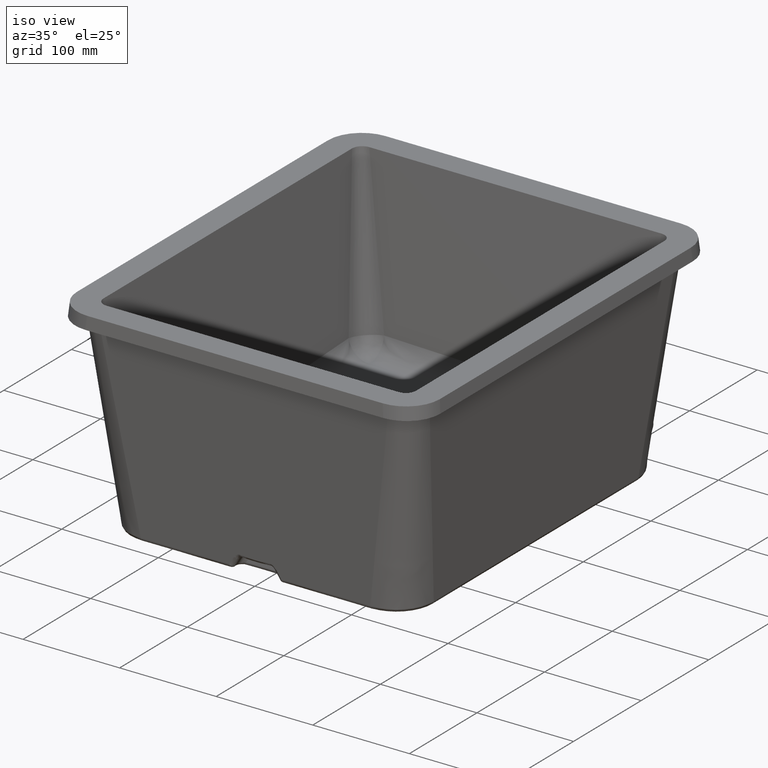
[diagram: clean part render]
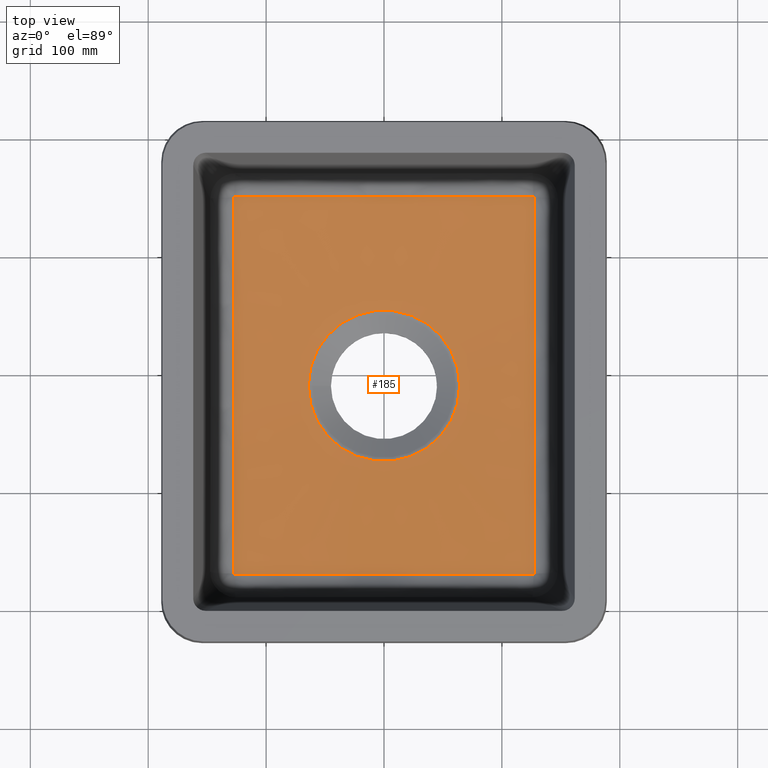
[diagram: tour spotlight — one face highlighted and labeled with its STEP entity id]
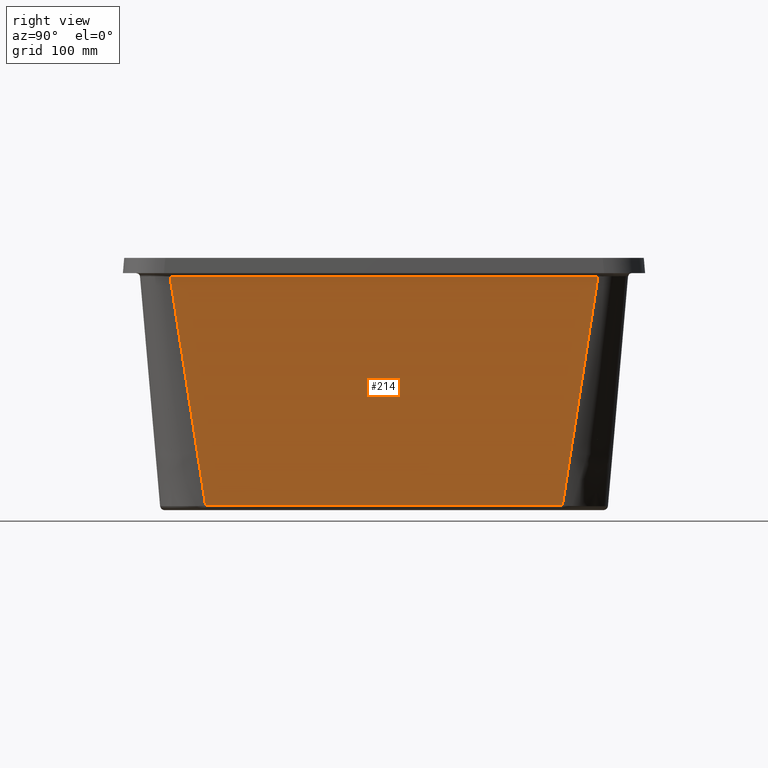
[diagram: tour spotlight — one face highlighted and labeled with its STEP entity id]
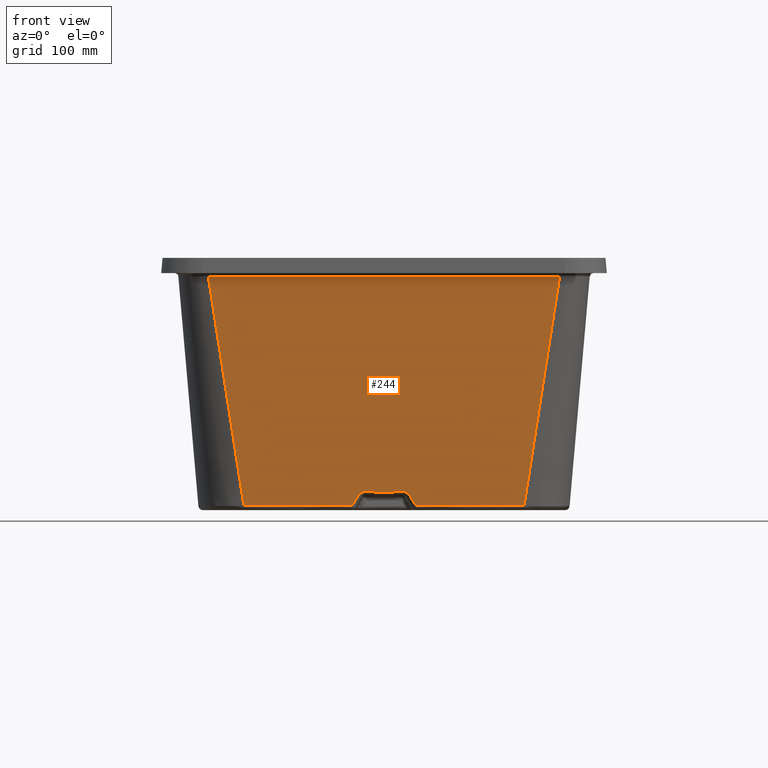
[diagram: tour spotlight — one face highlighted and labeled with its STEP entity id]
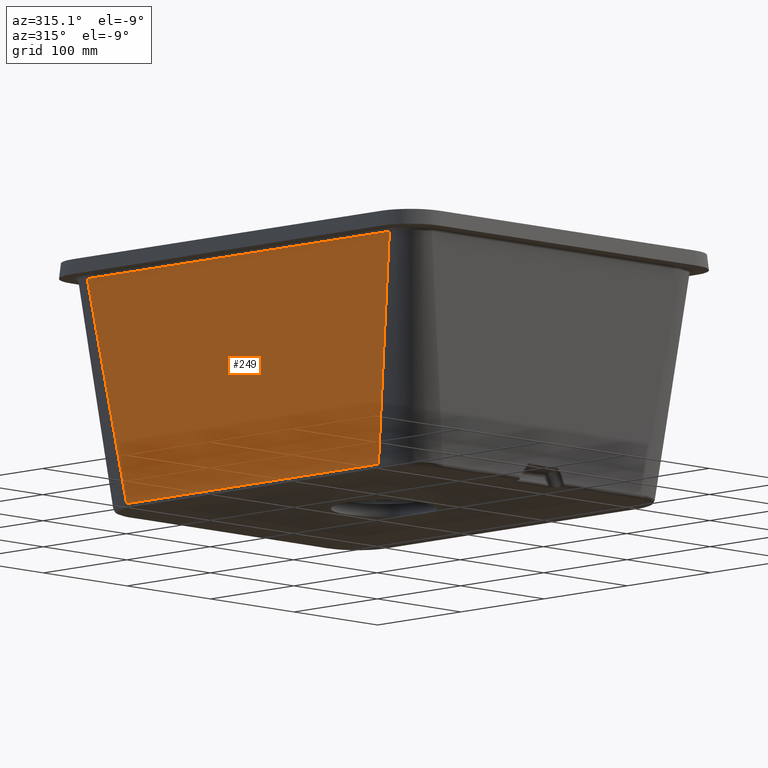
[diagram: tour spotlight — one face highlighted and labeled with its STEP entity id]
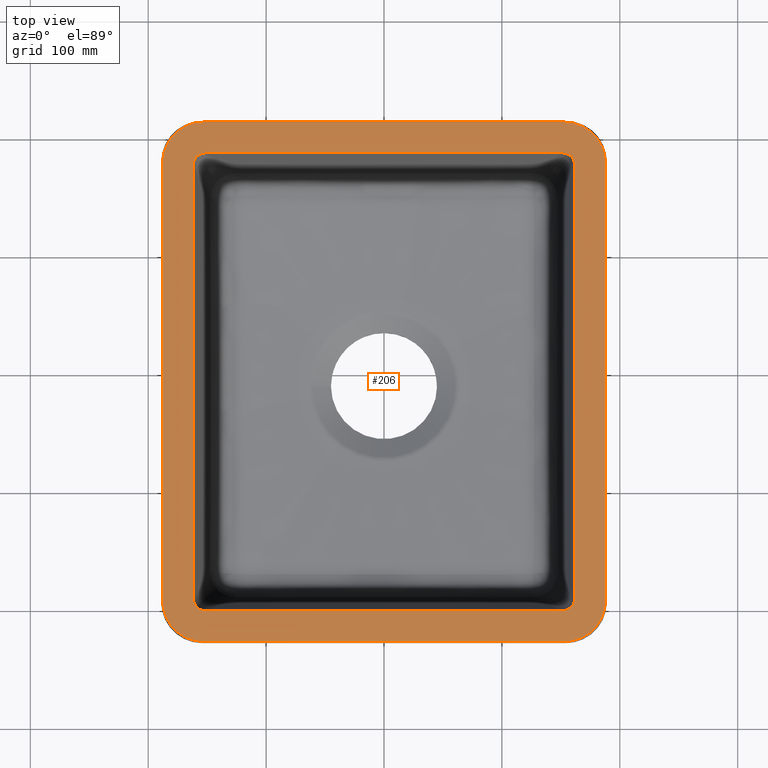
[diagram: tour spotlight — one face highlighted and labeled with its STEP entity id]
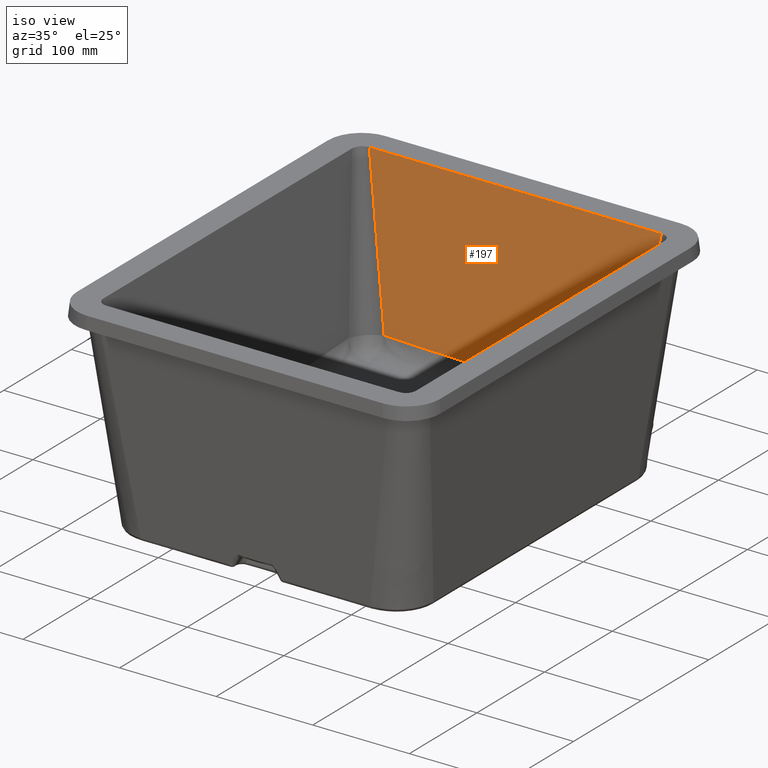
[diagram: tour spotlight — one face highlighted and labeled with its STEP entity id]
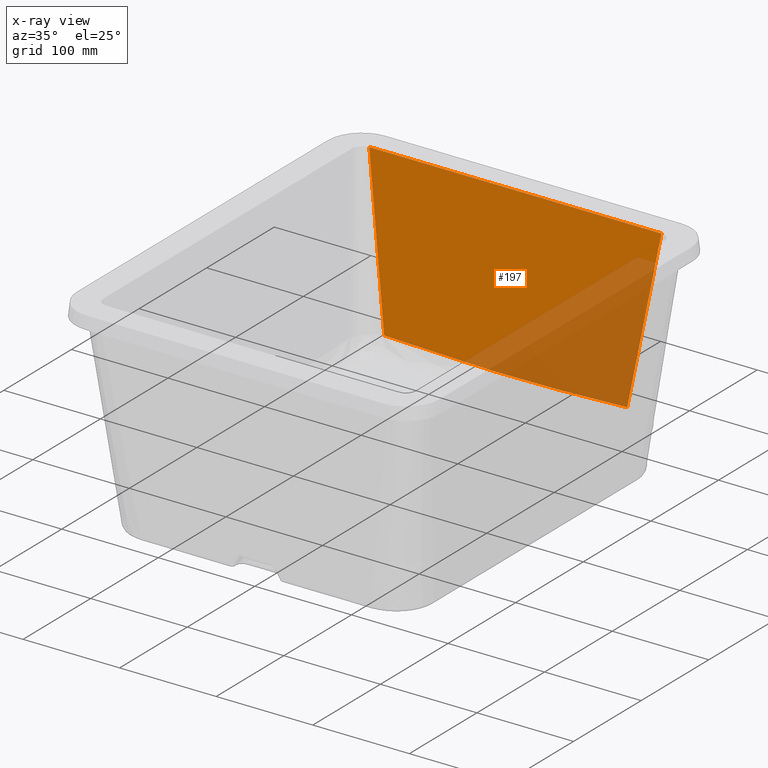
[diagram: x-ray of the same camera — body ghosted, this tour face saturated]
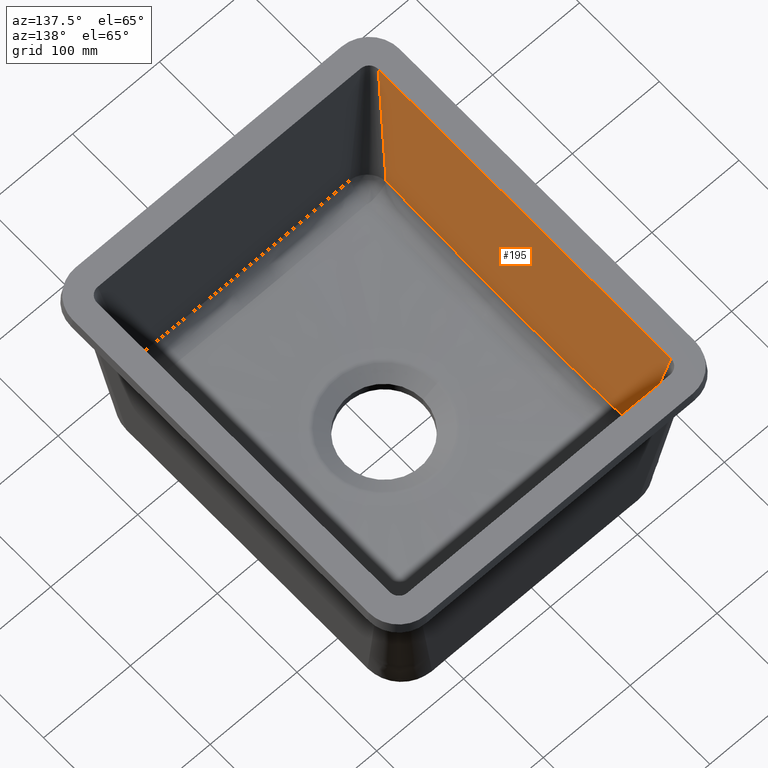
[diagram: tour spotlight — one face highlighted and labeled with its STEP entity id]
A machine part: a face-by-face anatomy tour. The part has 85 B-rep faces; the first image is the clean iso view, then the 7 largest visible faces are spotlighted one at a time (largest first), each with its STEP entity span.

Face 1 — top view, entity #185. In plain terms, the highlighted conical surface has half-angle 86 deg.
Definition (entity closure, byte-faithful):
#115=CONICAL_SURFACE('',#1355,62.3205080756888,86.);
#147=(
BOUNDED_CURVE()
B_SPLINE_CURVE(3,(#2100,#2101,#2102,#2103,#2104,#2105),.UNSPECIFIED.,.F.,
 .F.)
B_SPLINE_CURVE_WITH_KNOTS((4,2,4),(0.,0.5,1.),.UNSPECIFIED.)
CURVE()
GEOMETRIC_REPRESENTATION_ITEM()
RATIONAL_B_SPLINE_CURVE((0.999999999999919,0.99999999999992,0.999999999999921,
0.999999999999921,0.99999999999992,0.999999999999919))
REPRESENTATION_ITEM('')
);
#148=(
BOUNDED_CURVE()
B_SPLINE_CURVE(3,(#2108,#2109,#2110,#2111,#2112,#2113,#2114,#2115,#2116,
#2117),.UNSPECIFIED.,.F.,.F.)
B_SPLINE_CURVE_WITH_KNOTS((4,2,2,2,4),(0.,0.25,0.5,0.75,1.),
 .UNSPECIFIED.)
CURVE()
GEOMETRIC_REPRESENTATION_ITEM()
RATIONAL_B_SPLINE_CURVE((1.,1.,1.,1.,1.,1.,1.,1.,1.,1.))
REPRESENTATION_ITEM('')
);
#149=(
BOUNDED_CURVE()
B_SPLINE_CURVE(3,(#2119,#2120,#2121,#2122,#2123,#2124,#2125,#2126,#2127,
#2128),.UNSPECIFIED.,.F.,.F.)
B_SPLINE_CURVE_WITH_KNOTS((4,2,2,2,4),(0.,0.25,0.5,0.75,1.),
 .UNSPECIFIED.)
CURVE()
GEOMETRIC_REPRESENTATION_ITEM()
RATIONAL_B_SPLINE_CURVE((1.,1.,1.,1.,1.,1.,1.,1.,1.,1.))
REPRESENTATION_ITEM('')
);
#150=(
BOUNDED_CURVE()
B_SPLINE_CURVE(3,(#2130,#2131,#2132,#2133,#2134,#2135,#2136,#2137,#2138,
#2139,#2140,#2141),.UNSPECIFIED.,.F.,.F.)
B_SPLINE_CURVE_WITH_KNOTS((4,2,2,2,2,4),(0.,0.25,0.5,0.625,0.75,1.),
 .UNSPECIFIED.)
CURVE()
GEOMETRIC_REPRESENTATION_ITEM()
RATIONAL_B_SPLINE_CURVE((1.,1.,1.,1.,1.,1.,1.,1.,1.,1.,1.,1.))
REPRESENTATION_ITEM('')
);
#151=(
BOUNDED_CURVE()
B_SPLINE_CURVE(3,(#2150,#2151,#2152,#2153,#2154,#2155,#2156,#2157,#2158,
#2159),.UNSPECIFIED.,.F.,.F.)
B_SPLINE_CURVE_WITH_KNOTS((4,2,2,2,4),(0.,0.25,0.5,0.75,1.),
 .UNSPECIFIED.)
CURVE()
GEOMETRIC_REPRESENTATION_ITEM()
RATIONAL_B_SPLINE_CURVE((1.,1.,1.,1.,1.,1.,1.,1.,1.,1.))
REPRESENTATION_ITEM('')
);
#152=(
BOUNDED_CURVE()
B_SPLINE_CURVE(3,(#2161,#2162,#2163,#2164,#2165,#2166,#2167,#2168,#2169,
#2170),.UNSPECIFIED.,.F.,.F.)
B_SPLINE_CURVE_WITH_KNOTS((4,2,2,2,4),(0.,0.25,0.5,0.75,1.),
 .UNSPECIFIED.)
CURVE()
GEOMETRIC_REPRESENTATION_ITEM()
RATIONAL_B_SPLINE_CURVE((0.999999999996311,0.999999999996332,0.99999999999636,
0.999999999996414,0.999999999996439,0.999999999996439,0.999999999996414,
0.99999999999636,0.999999999996332,0.999999999996311))
REPRESENTATION_ITEM('')
);
#153=(
BOUNDED_CURVE()
B_SPLINE_CURVE(3,(#2172,#2173,#2174,#2175,#2176,#2177,#2178,#2179,#2180,
#2181,#2182,#2183),.UNSPECIFIED.,.F.,.F.)
B_SPLINE_CURVE_WITH_KNOTS((4,2,2,2,2,4),(0.,0.25,0.5,0.625,0.75,1.),
 .UNSPECIFIED.)
CURVE()
GEOMETRIC_REPRESENTATION_ITEM()
RATIONAL_B_SPLINE_CURVE((1.,1.,1.,1.,1.,1.,1.,1.,1.,1.,1.,1.))
REPRESENTATION_ITEM('')
);
#166=FACE_BOUND('',#398,.T.);
#167=FACE_BOUND('',#399,.T.);
#185=ADVANCED_FACE('',(#166,#167),#115,.F.);
#398=EDGE_LOOP('',(#567));
#399=EDGE_LOOP('',(#568,#569,#570,#571,#572,#573,#574,#575));
#481=CIRCLE('',#1353,64.1629545382118);
#567=ORIENTED_EDGE('',*,*,#1070,.T.);
#568=ORIENTED_EDGE('',*,*,#1071,.F.);
#569=ORIENTED_EDGE('',*,*,#1072,.F.);
#570=ORIENTED_EDGE('',*,*,#1073,.F.);
#571=ORIENTED_EDGE('',*,*,#1074,.F.);
#572=ORIENTED_EDGE('',*,*,#1075,.F.);
#573=ORIENTED_EDGE('',*,*,#1076,.F.);
#574=ORIENTED_EDGE('',*,*,#1077,.F.);
#575=ORIENTED_EDGE('',*,*,#1078,.F.);
#939=VERTEX_POINT('',#2098);
#940=VERTEX_POINT('',#2106);
#941=VERTEX_POINT('',#2107);
#942=VERTEX_POINT('',#2118);
#943=VERTEX_POINT('',#2129);
#944=VERTEX_POINT('',#2142);
#945=VERTEX_POINT('',#2149);
#946=VERTEX_POINT('',#2160);
#947=VERTEX_POINT('',#2171);
#1070=EDGE_CURVE('',#939,#939,#481,.T.);
#1071=EDGE_CURVE('',#940,#941,#147,.T.);
#1072=EDGE_CURVE('',#942,#940,#148,.T.);
#1073=EDGE_CURVE('',#943,#942,#149,.T.);
#1074=EDGE_CURVE('',#944,#943,#150,.T.);
#1075=EDGE_CURVE('',#945,#944,#1253,.T.);
#1076=EDGE_CURVE('',#946,#945,#151,.T.);
#1077=EDGE_CURVE('',#947,#946,#152,.T.);
#1078=EDGE_CURVE('',#941,#947,#153,.T.);
#1253=B_SPLINE_CURVE_WITH_KNOTS('',3,(#2143,#2144,#2145,#2146,#2147,#2148),
 .UNSPECIFIED.,.F.,.F.,(4,2,4),(0.,0.5,1.),.UNSPECIFIED.);
#1353=AXIS2_PLACEMENT_3D('',#2097,#1438,#1439);
#1355=AXIS2_PLACEMENT_3D('',#2184,#1442,#1443);
#1438=DIRECTION('',(0.,0.,-1.));
#1439=DIRECTION('',(-1.,0.,0.));
#1442=DIRECTION('',(0.,0.,1.));
#1443=DIRECTION('',(-1.,0.,-3.86487519207004E-18));
#2097=CARTESIAN_POINT('',(0.,-209.,-192.871163592699));
#2098=CARTESIAN_POINT('',(-64.1629545382118,-209.,-192.871163592699));
#2100=CARTESIAN_POINT('',(126.703967388043,-369.184486082414,-183.076195734365));
#2101=CARTESIAN_POINT('',(84.6086063650151,-369.1715290002,-184.903040386811));
#2102=CARTESIAN_POINT('',(42.3010038671483,-369.231249263131,-186.153787584607));
#2103=CARTESIAN_POINT('',(-42.3414662946007,-369.231216741133,-186.153042538401));
#2104=CARTESIAN_POINT('',(-84.6185140119551,-369.171532045172,-184.902610418815));
#2105=CARTESIAN_POINT('',(-126.703967557267,-369.184486082466,-183.076195727021));
#2106=CARTESIAN_POINT('',(126.703967388043,-369.184486082409,-183.076195734365));
#2107=CARTESIAN_POINT('',(-126.703967557267,-369.184486082461,-183.076195727021));
#2108=CARTESIAN_POINT('',(127.449498596173,-368.43812106568,-183.084599488043));
#2109=CARTESIAN_POINT('',(127.449623894954,-368.535363489934,-183.079282583503));
#2110=CARTESIAN_POINT('',(127.428266025886,-368.632889840382,-183.074886137741));
#2111=CARTESIAN_POINT('',(127.351853907229,-368.810266371386,-183.068520999301));
#2112=CARTESIAN_POINT('',(127.295711032138,-368.892621491205,-183.066462752399));
#2113=CARTESIAN_POINT('',(127.158771448564,-369.029827186322,-183.064914572743));
#2114=CARTESIAN_POINT('',(127.076754136359,-369.08610893853,-183.065399451886));
#2115=CARTESIAN_POINT('',(126.898047914273,-369.163346090652,-183.068932584697));
#2116=CARTESIAN_POINT('',(126.800933847891,-369.184515867682,-183.071987609935));
#2117=CARTESIAN_POINT('',(126.703967388043,-369.184486082409,-183.076195734365));
#2118=CARTESIAN_POINT('',(127.449498596173,-368.43812106568,-183.084599488043));
#2119=CARTESIAN_POINT('',(127.449498596391,-49.561878765066,-183.084599478788));
#2120=CARTESIAN_POINT('',(127.415406311265,-76.0098115247745,-184.530688391495));
#2121=CARTESIAN_POINT('',(127.417109990099,-102.494773973307,-185.852690479812));
#2122=CARTESIAN_POINT('',(127.477798579808,-155.653420841765,-187.824032419283));
#2123=CARTESIAN_POINT('',(127.531245177134,-182.356328577732,-188.440858104068));
#2124=CARTESIAN_POINT('',(127.531115716667,-235.758142535176,-188.43919125249));
#2125=CARTESIAN_POINT('',(127.477681222925,-262.423281006196,-187.821665350397));
#2126=CARTESIAN_POINT('',(127.417104856266,-315.535869623514,-185.851075770898));
#2127=CARTESIAN_POINT('',(127.415424686625,-342.004443071966,-184.52990899482));
#2128=CARTESIAN_POINT('',(127.449498596173,-368.43812106568,-183.084599488043));
#2129=CARTESIAN_POINT('',(127.449498596391,-49.561878765066,-183.084599478788));
#2130=CARTESIAN_POINT('',(126.703967557267,-48.815513917539,-183.076195727021));
#2131=CARTESIAN_POINT('',(126.801495029359,-48.8154839484248,-183.071963255297));
#2132=CARTESIAN_POINT('',(126.899142158549,-48.8370537047917,-183.06890695973));
#2133=CARTESIAN_POINT('',(127.076620939909,-48.9139069135208,-183.065406091644));
#2134=CARTESIAN_POINT('',(127.158922022227,-48.9702893205496,-183.064914401053));
#2135=CARTESIAN_POINT('',(127.261607790575,-49.0732260780724,-183.066078127609));
#2136=CARTESIAN_POINT('',(127.293053274725,-49.1112376158499,-183.066788410479));
#2137=CARTESIAN_POINT('',(127.347747809569,-49.1918062347472,-183.068812411558));
#2138=CARTESIAN_POINT('',(127.371068002559,-49.2342502016487,-183.07011687498));
#2139=CARTESIAN_POINT('',(127.428666588853,-49.3682117330838,-183.074928879847));
#2140=CARTESIAN_POINT('',(127.449623272408,-49.4651112157955,-183.079308539366));
#2141=CARTESIAN_POINT('',(127.449498596391,-49.561878765066,-183.084599478788));
#2142=CARTESIAN_POINT('',(126.703967676714,-48.8155332062349,-183.076196779708));
#2143=CARTESIAN_POINT('',(-126.703967626936,-48.8155524949828,-183.076197839738));
#2144=CARTESIAN_POINT('',(-84.6086065737248,-48.8285094112737,-184.903042756999));
#2145=CARTESIAN_POINT('',(-42.3010039788508,-48.7687889401788,-186.153790256134));
#2146=CARTESIAN_POINT('',(42.3414664064101,-48.7688214625837,-186.153045209774));
#2147=CARTESIAN_POINT('',(84.6185142206459,-48.8285063611521,-184.902612788656));
#2148=CARTESIAN_POINT('',(126.70396779616,-48.8155524949307,-183.076197832394));
#2149=CARTESIAN_POINT('',(-126.70396750749,-48.8155332062869,-183.076196787052));
#2150=CARTESIAN_POINT('',(-127.449498596173,-49.5618789343203,-183.084599488042));
#2151=CARTESIAN_POINT('',(-127.449623894956,-49.4646365100654,-183.079282583503));
#2152=CARTESIAN_POINT('',(-127.428266025888,-49.3671101596184,-183.074886137741));
#2153=CARTESIAN_POINT('',(-127.351853907227,-49.1897336286135,-183.068520999301));
#2154=CARTESIAN_POINT('',(-127.295711032136,-49.1073785087932,-183.066462752399));
#2155=CARTESIAN_POINT('',(-127.158771448567,-48.9701728136806,-183.064914572743));
#2156=CARTESIAN_POINT('',(-127.076754136354,-48.9138910614766,-183.065399451887));
#2157=CARTESIAN_POINT('',(-126.898047914278,-48.8366539093418,-183.068932584697));
#2158=CARTESIAN_POINT('',(-126.800933847887,-48.8154841323343,-183.071987609936));
#2159=CARTESIAN_POINT('',(-126.703967388043,-48.815513917591,-183.076195734365));
#2160=CARTESIAN_POINT('',(-127.449498596173,-49.5618789343203,-183.084599488043));
#2161=CARTESIAN_POINT('',(-127.449498596597,-368.438121234932,-183.084599478779));
#2162=CARTESIAN_POINT('',(-127.415406311104,-341.990188475226,-184.530688391501));
#2163=CARTESIAN_POINT('',(-127.417109990303,-315.505226026692,-185.852690479801));
#2164=CARTESIAN_POINT('',(-127.477798580011,-262.346579158235,-187.82403241927));
#2165=CARTESIAN_POINT('',(-127.531245177336,-235.643671422267,-188.440858104054));
#2166=CARTESIAN_POINT('',(-127.531115716869,-182.241857464825,-188.439191252476));
#2167=CARTESIAN_POINT('',(-127.47768122313,-155.576718994535,-187.821665350411));
#2168=CARTESIAN_POINT('',(-127.417104856468,-102.464130375755,-185.851075770859));
#2169=CARTESIAN_POINT('',(-127.41542468574,-75.9955569285797,-184.529908994887));
#2170=CARTESIAN_POINT('',(-127.449498596379,-49.5618789343218,-183.084599488034));
#2171=CARTESIAN_POINT('',(-127.449498596391,-368.438121234934,-183.084599478788));
#2172=CARTESIAN_POINT('',(-126.703967557267,-369.184486082461,-183.076195727021));
#2173=CARTESIAN_POINT('',(-126.801495029358,-369.184516051579,-183.071963255297));
#2174=CARTESIAN_POINT('',(-126.899142158551,-369.162946295208,-183.06890695973));
#2175=CARTESIAN_POINT('',(-127.076620939908,-369.08609308648,-183.065406091645));
#2176=CARTESIAN_POINT('',(-127.158922022227,-369.029710679452,-183.064914401053));
#2177=CARTESIAN_POINT('',(-127.261607790575,-368.926773921927,-183.066078127609));
#2178=CARTESIAN_POINT('',(-127.293053274723,-368.888762384157,-183.066788410479));
#2179=CARTESIAN_POINT('',(-127.347747809571,-368.808193765246,-183.068812411559));
#2180=CARTESIAN_POINT('',(-127.371068002559,-368.765749798351,-183.07011687498));
#2181=CARTESIAN_POINT('',(-127.428666588855,-368.631788266918,-183.074928879847));
#2182=CARTESIAN_POINT('',(-127.449623272413,-368.534888784204,-183.079308539366));
#2183=CARTESIAN_POINT('',(-127.449498596391,-368.438121234934,-183.084599478788));
#2184=CARTESIAN_POINT('',(0.,-209.,-193.));

Face 2 — right view, entity #214. In plain terms, the highlighted planar face has unit normal (0.9962, 0, -0.0872).
Definition (entity closure, byte-faithful):
#56=PLANE('',#1380);
#214=ADVANCED_FACE('',(#339),#56,.T.);
#339=FACE_OUTER_BOUND('',#429,.T.);
#429=EDGE_LOOP('',(#704,#705,#706,#707,#708,#709));
#704=ORIENTED_EDGE('',*,*,#1151,.F.);
#705=ORIENTED_EDGE('',*,*,#1152,.F.);
#706=ORIENTED_EDGE('',*,*,#1153,.F.);
#707=ORIENTED_EDGE('',*,*,#1154,.F.);
#708=ORIENTED_EDGE('',*,*,#1124,.T.);
#709=ORIENTED_EDGE('',*,*,#1155,.F.);
#974=VERTEX_POINT('',#3049);
#975=VERTEX_POINT('',#3051);
#992=VERTEX_POINT('',#3440);
#993=VERTEX_POINT('',#3441);
#994=VERTEX_POINT('',#3452);
#995=VERTEX_POINT('',#3457);
#1124=EDGE_CURVE('',#974,#975,#1283,.T.);
#1151=EDGE_CURVE('',#992,#993,#1296,.T.);
#1152=EDGE_CURVE('',#994,#992,#1297,.T.);
#1153=EDGE_CURVE('',#995,#994,#1298,.T.);
#1154=EDGE_CURVE('',#974,#995,#1299,.T.);
#1155=EDGE_CURVE('',#993,#975,#1300,.T.);
#1283=B_SPLINE_CURVE_WITH_KNOTS('',3,(#3052,#3053,#3054,#3055),
 .UNSPECIFIED.,.F.,.F.,(4,4),(0.,1.),.UNSPECIFIED.);
#1296=B_SPLINE_CURVE_WITH_KNOTS('',3,(#3436,#3437,#3438,#3439),
 .UNSPECIFIED.,.F.,.F.,(4,4),(0.,1.),.UNSPECIFIED.);
#1297=B_SPLINE_CURVE_WITH_KNOTS('',3,(#3442,#3443,#3444,#3445,#3446,#3447,
#3448,#3449,#3450,#3451),.UNSPECIFIED.,.F.,.F.,(4,2,2,2,4),(0.,0.652864823991823,
0.917348767617101,0.98346975352342,1.),.UNSPECIFIED.);
#1298=B_SPLINE_CURVE_WITH_KNOTS('',3,(#3453,#3454,#3455,#3456),
 .UNSPECIFIED.,.F.,.F.,(4,4),(0.,1.),.UNSPECIFIED.);
#1299=B_SPLINE_CURVE_WITH_KNOTS('',3,(#3458,#3459,#3460,#3461),
 .UNSPECIFIED.,.F.,.F.,(4,4),(0.,1.),.UNSPECIFIED.);
#1300=B_SPLINE_CURVE_WITH_KNOTS('',3,(#3462,#3463,#3464,#3465),
 .UNSPECIFIED.,.F.,.F.,(4,4),(0.,1.),.UNSPECIFIED.);
#1380=AXIS2_PLACEMENT_3D('',#3466,#1500,#1501);
#1500=DIRECTION('',(0.996194698091746,2.83589305341272E-16,-0.0871557427476581));
#1501=DIRECTION('',(0.0871557427476581,0.,0.996194698091745));
#3049=CARTESIAN_POINT('',(157.450399016056,-360.285394313549,-210.349188793932));
#3051=CARTESIAN_POINT('',(157.450387837262,-57.7146253036506,-210.34931656813));
#3052=CARTESIAN_POINT('',(157.450399016056,-360.285394313549,-210.349188793932));
#3053=CARTESIAN_POINT('',(157.450534043004,-261.445502230286,-210.347645428848));
#3054=CARTESIAN_POINT('',(157.45053031674,-160.588579226986,-210.347688020247));
#3055=CARTESIAN_POINT('',(157.450387837262,-57.7146253036505,-210.34931656813));
#3436=CARTESIAN_POINT('',(174.47662521934,-27.5145028274378,-15.738532771757));
#3437=CARTESIAN_POINT('',(170.118299503669,-35.2450405528793,-65.554423654338));
#3438=CARTESIAN_POINT('',(165.759973787999,-42.9755782783207,-115.370314536919));
#3439=CARTESIAN_POINT('',(161.401648072329,-50.7061160037622,-165.1862054195));
#3440=CARTESIAN_POINT('',(174.47662521934,-27.5145028274378,-15.738532771757));
#3441=CARTESIAN_POINT('',(161.401648072329,-50.7061160037622,-165.1862054195));
#3442=CARTESIAN_POINT('',(174.47662521934,-390.485497149926,-15.7385327717571));
#3443=CARTESIAN_POINT('',(174.47662521934,-311.495165709097,-15.7385327717571));
#3444=CARTESIAN_POINT('',(174.47662521934,-232.504834268267,-15.738532771757));
#3445=CARTESIAN_POINT('',(174.47662521934,-121.514502827438,-15.738532771757));
#3446=CARTESIAN_POINT('',(174.47662521934,-89.5145028274378,-15.738532771757));
#3447=CARTESIAN_POINT('',(174.47662521934,-49.5145028274378,-15.738532771757));
#3448=CARTESIAN_POINT('',(174.47662521934,-41.5145028274378,-15.738532771757));
#3449=CARTESIAN_POINT('',(174.47662521934,-31.5145028274378,-15.738532771757));
#3450=CARTESIAN_POINT('',(174.47662521934,-29.5145028274378,-15.738532771757));
#3451=CARTESIAN_POINT('',(174.47662521934,-27.5145028274378,-15.738532771757));
#3452=CARTESIAN_POINT('',(174.47662521934,-390.485497149926,-15.7385327717571));
#3453=CARTESIAN_POINT('',(161.401648071519,-367.293883827456,-165.186205428754));
#3454=CARTESIAN_POINT('',(165.759973787459,-375.024421601613,-115.370314543088));
#3455=CARTESIAN_POINT('',(170.118299503399,-382.75495937577,-65.5544236574228));
#3456=CARTESIAN_POINT('',(174.47662521934,-390.485497149926,-15.7385327717571));
#3457=CARTESIAN_POINT('',(161.401648071519,-367.293883827456,-165.186205428754));
#3458=CARTESIAN_POINT('',(157.450399016056,-360.285394313549,-210.349188793932));
#3459=CARTESIAN_POINT('',(158.767482034544,-362.621557484852,-195.294861005539));
#3460=CARTESIAN_POINT('',(160.084565053031,-364.957720656154,-180.240533217147));
#3461=CARTESIAN_POINT('',(161.401648071519,-367.293883827456,-165.186205428754));
#3462=CARTESIAN_POINT('',(161.401648072329,-50.7061160037623,-165.1862054195));
#3463=CARTESIAN_POINT('',(160.084561327307,-53.0422857703917,-180.240575802377));
#3464=CARTESIAN_POINT('',(158.767474582285,-55.3784555370211,-195.294946185253));
#3465=CARTESIAN_POINT('',(157.450387837262,-57.7146253036506,-210.34931656813));
#3466=CARTESIAN_POINT('',(176.446725773284,-14.,6.77981960153279));

Face 3 — front view, entity #244. In plain terms, the highlighted planar face has unit normal (0, -0.9962, -0.0872).
Definition (entity closure, byte-faithful):
#50=ELLIPSE('',#1406,141.892385264978,140.145454545452);
#63=PLANE('',#1413);
#244=ADVANCED_FACE('',(#368),#63,.T.);
#368=FACE_OUTER_BOUND('',#460,.T.);
#460=EDGE_LOOP('',(#844,#845,#846,#847,#848,#849,#850,#851,#852,#853,#854,
#855));
#844=ORIENTED_EDGE('',*,*,#1201,.T.);
#845=ORIENTED_EDGE('',*,*,#1190,.T.);
#846=ORIENTED_EDGE('',*,*,#1216,.F.);
#847=ORIENTED_EDGE('',*,*,#1217,.F.);
#848=ORIENTED_EDGE('',*,*,#1191,.T.);
#849=ORIENTED_EDGE('',*,*,#1193,.T.);
#850=ORIENTED_EDGE('',*,*,#1195,.T.);
#851=ORIENTED_EDGE('',*,*,#1197,.T.);
#852=ORIENTED_EDGE('',*,*,#1198,.T.);
#853=ORIENTED_EDGE('',*,*,#1199,.T.);
#854=ORIENTED_EDGE('',*,*,#1200,.T.);
#855=ORIENTED_EDGE('',*,*,#1202,.T.);
#926=VERTEX_POINT('',#1826);
#927=VERTEX_POINT('',#1904);
#985=VERTEX_POINT('',#3198);
#990=VERTEX_POINT('',#3296);
#991=VERTEX_POINT('',#3361);
#998=VERTEX_POINT('',#3481);
#1015=VERTEX_POINT('',#3750);
#1016=VERTEX_POINT('',#3766);
#1017=VERTEX_POINT('',#3808);
#1018=VERTEX_POINT('',#3849);
#1019=VERTEX_POINT('',#3955);
#1027=VERTEX_POINT('',#4322);
#1190=EDGE_CURVE('',#998,#1015,#1309,.T.);
#1191=EDGE_CURVE('',#1016,#926,#1310,.T.);
#1193=EDGE_CURVE('',#926,#985,#1311,.T.);
#1195=EDGE_CURVE('',#985,#1017,#1312,.T.);
#1197=EDGE_CURVE('',#1017,#1018,#50,.T.);
#1198=EDGE_CURVE('',#1018,#990,#1313,.T.);
#1199=EDGE_CURVE('',#990,#927,#1314,.T.);
#1200=EDGE_CURVE('',#927,#991,#1315,.T.);
#1201=EDGE_CURVE('',#1019,#998,#1316,.T.);
#1202=EDGE_CURVE('',#991,#1019,#1317,.T.);
#1216=EDGE_CURVE('',#1027,#1015,#1326,.T.);
#1217=EDGE_CURVE('',#1016,#1027,#1327,.T.);
#1309=B_SPLINE_CURVE_WITH_KNOTS('',3,(#3751,#3752,#3753,#3754,#3755,#3756,
#3757,#3758,#3759,#3760),.UNSPECIFIED.,.F.,.F.,(4,2,2,2,4),(0.,0.0201361881334876,
0.100680940667438,0.422859950803239,1.),.UNSPECIFIED.);
#1310=B_SPLINE_CURVE_WITH_KNOTS('',3,(#3762,#3763,#3764,#3765),
 .UNSPECIFIED.,.F.,.F.,(4,4),(0.,1.),.UNSPECIFIED.);
#1311=B_SPLINE_CURVE_WITH_KNOTS('',3,(#3789,#3790,#3791,#3792,#3793,#3794),
 .UNSPECIFIED.,.F.,.F.,(4,2,4),(0.,0.831798180198763,1.),.UNSPECIFIED.);
#1312=B_SPLINE_CURVE_WITH_KNOTS('',3,(#3809,#3810,#3811,#3812,#3813,#3814,
#3815,#3816,#3817,#3818,#3819,#3820,#3821,#3822,#3823),.UNSPECIFIED.,.F.,
 .F.,(4,1,2,2,2,2,2,4),(0.,0.0312499999999958,0.0468749999999962,0.0624999999999966,
0.125,0.249999999999999,0.499999999999999,1.),.UNSPECIFIED.);
#1313=B_SPLINE_CURVE_WITH_KNOTS('',3,(#3863,#3864,#3865,#3866,#3867,#3868,
#3869,#3870,#3871,#3872,#3873,#3874),.UNSPECIFIED.,.F.,.F.,(4,2,2,2,2,4),
(0.,0.249999999999999,0.499999999999999,0.625000000000001,0.750000000000003,
1.),.UNSPECIFIED.);
#1314=B_SPLINE_CURVE_WITH_KNOTS('',3,(#3899,#3900,#3901,#3902,#3903,#3904),
 .UNSPECIFIED.,.F.,.F.,(4,2,4),(0.,0.541241057980959,1.),.UNSPECIFIED.);
#1315=B_SPLINE_CURVE_WITH_KNOTS('',3,(#3926,#3927,#3928,#3929),
 .UNSPECIFIED.,.F.,.F.,(4,4),(0.,1.),.UNSPECIFIED.);
#1316=B_SPLINE_CURVE_WITH_KNOTS('',3,(#3951,#3952,#3953,#3954),
 .UNSPECIFIED.,.F.,.F.,(4,4),(0.,1.),.UNSPECIFIED.);
#1317=B_SPLINE_CURVE_WITH_KNOTS('',3,(#3956,#3957,#3958,#3959),
 .UNSPECIFIED.,.F.,.F.,(4,4),(0.,1.),.UNSPECIFIED.);
#1326=B_SPLINE_CURVE_WITH_KNOTS('',3,(#4318,#4319,#4320,#4321),
 .UNSPECIFIED.,.F.,.F.,(4,4),(0.,1.),.UNSPECIFIED.);
#1327=B_SPLINE_CURVE_WITH_KNOTS('',3,(#4323,#4324,#4325,#4326),
 .UNSPECIFIED.,.F.,.F.,(4,4),(0.,1.),.UNSPECIFIED.);
#1406=AXIS2_PLACEMENT_3D('',#3850,#1567,#1568);
#1413=AXIS2_PLACEMENT_3D('',#4327,#1582,#1583);
#1567=DIRECTION('',(-1.23259516440783E-32,-0.996194698091746,-0.0871557427476581));
#1568=DIRECTION('',(-7.8094275502587E-16,-0.0871557427476581,0.996194698091746));
#1582=DIRECTION('',(0.,-0.996194698091746,-0.0871557427476581));
#1583=DIRECTION('',(0.,-0.0871557427476581,0.996194698091745));
#1826=CARTESIAN_POINT('',(-27.2172412032377,-398.950460944322,-210.348480950615));
#1904=CARTESIAN_POINT('',(27.2172393453275,-398.950463364506,-210.348453287777));
#3198=CARTESIAN_POINT('',(-22.13459117232,-399.66208314712,-202.214554626794));
#3296=CARTESIAN_POINT('',(22.1346051601516,-399.662083336245,-202.214552465077));
#3361=CARTESIAN_POINT('',(118.785387163965,-398.95039498527,-210.349234866037));
#3481=CARTESIAN_POINT('',(148.985497149927,-415.97662521934,-15.738532771757));
#3750=CARTESIAN_POINT('',(-148.985497172562,-415.97662521934,-15.738532771757));
#3751=CARTESIAN_POINT('',(148.985497149927,-415.97662521934,-15.738532771757));
#3752=CARTESIAN_POINT('',(146.985497149927,-415.97662521934,-15.738532771757));
#3753=CARTESIAN_POINT('',(144.985497149927,-415.97662521934,-15.738532771757));
#3754=CARTESIAN_POINT('',(134.985497149927,-415.97662521934,-15.738532771757));
#3755=CARTESIAN_POINT('',(126.985497149927,-415.97662521934,-15.738532771757));
#3756=CARTESIAN_POINT('',(86.9854971499267,-415.97662521934,-15.738532771757));
#3757=CARTESIAN_POINT('',(54.9854971499267,-415.97662521934,-15.738532771757));
#3758=CARTESIAN_POINT('',(-34.3381676242363,-415.97662521934,-15.738532771757));
#3759=CARTESIAN_POINT('',(-91.6618323983993,-415.97662521934,-15.738532771757));
#3760=CARTESIAN_POINT('',(-148.985497172562,-415.97662521934,-15.738532771757));
#3762=CARTESIAN_POINT('',(-118.785370703104,-398.950385585948,-210.349342300766));
#3763=CARTESIAN_POINT('',(-88.1782662916359,-398.950425578424,-210.348885184678));
#3764=CARTESIAN_POINT('',(-57.6555564583471,-398.950450697881,-210.348598067961));
#3765=CARTESIAN_POINT('',(-27.2172412032377,-398.950460944321,-210.348480950615));
#3766=CARTESIAN_POINT('',(-118.785370703104,-398.950385585629,-210.349342304422));
#3789=CARTESIAN_POINT('',(-27.2172412032377,-398.950460944322,-210.348480950615));
#3790=CARTESIAN_POINT('',(-25.8079948655362,-399.147770764142,-208.093219390221));
#3791=CARTESIAN_POINT('',(-24.3987485243964,-399.345080583776,-205.83795783196));
#3792=CARTESIAN_POINT('',(-22.7045318523882,-399.582289349244,-203.126649235982));
#3793=CARTESIAN_POINT('',(-22.4195615248758,-399.622188295261,-202.670602196184));
#3794=CARTESIAN_POINT('',(-22.1345911972198,-399.66208724127,-202.214555156476));
#3808=CARTESIAN_POINT('',(-14.6411522077451,-400.027616984678,-198.036531071105));
#3809=CARTESIAN_POINT('',(-22.1345911972198,-399.66208724127,-202.214555156476));
#3810=CARTESIAN_POINT('',(-22.0291307452336,-399.672877595688,-202.091220841111));
#3811=CARTESIAN_POINT('',(-21.9045301779706,-399.685623639728,-201.945532891084));
#3812=CARTESIAN_POINT('',(-21.8303147767819,-399.693210452386,-201.858815225587));
#3813=CARTESIAN_POINT('',(-21.7920345462281,-399.697121831629,-201.814107956262));
#3814=CARTESIAN_POINT('',(-21.8051012528756,-399.695793673797,-201.82928886975));
#3815=CARTESIAN_POINT('',(-21.6323418436603,-399.713392640205,-201.628131763236));
#3816=CARTESIAN_POINT('',(-21.5354313847271,-399.72319833621,-201.516052145035));
#3817=CARTESIAN_POINT('',(-21.1373738548283,-399.762795659158,-201.06345267268));
#3818=CARTESIAN_POINT('',(-20.921984582723,-399.783579423524,-200.825893158928));
#3819=CARTESIAN_POINT('',(-20.0831341475954,-399.85867368864,-199.96756178102));
#3820=CARTESIAN_POINT('',(-19.561829337082,-399.898625086616,-199.510915212585));
#3821=CARTESIAN_POINT('',(-17.6607705620036,-400.006324237158,-198.279908288921));
#3822=CARTESIAN_POINT('',(-16.1344566305566,-400.041459139148,-197.87831452153));
#3823=CARTESIAN_POINT('',(-14.6411522077451,-400.027616984678,-198.036531071105));
#3849=CARTESIAN_POINT('',(14.6411659841225,-400.027617112378,-198.036529611488));
#3850=CARTESIAN_POINT('',(7.33526676467723E-14,-412.326681455204,-57.4575808979662));
#3863=CARTESIAN_POINT('',(14.6411659841225,-400.027617112378,-198.036529611488));
#3864=CARTESIAN_POINT('',(15.3871249234604,-400.03453176992,-197.957494714129));
#3865=CARTESIAN_POINT('',(16.1533694774747,-400.029174346459,-198.018730344494));
#3866=CARTESIAN_POINT('',(17.5981372256182,-399.997179660599,-198.384431277287));
#3867=CARTESIAN_POINT('',(18.327971349085,-399.968516037537,-198.71205798807));
#3868=CARTESIAN_POINT('',(19.2282496898402,-399.917529437635,-199.294837491688));
#3869=CARTESIAN_POINT('',(19.5627014577902,-399.89530655254,-199.548846230643));
#3870=CARTESIAN_POINT('',(20.0903056699972,-399.856037468363,-199.997693916672));
#3871=CARTESIAN_POINT('',(20.3952006693129,-399.830735793613,-200.286893382406));
#3872=CARTESIAN_POINT('',(21.1367437467328,-399.764361491948,-201.045555121999));
#3873=CARTESIAN_POINT('',(21.6500314625466,-399.711739463458,-201.64702765991));
#3874=CARTESIAN_POINT('',(22.1346051850554,-399.662087430396,-202.214552994752));
#3899=CARTESIAN_POINT('',(22.1346051850554,-399.662087430397,-202.214552994752));
#3900=CARTESIAN_POINT('',(23.0515819506245,-399.533700709744,-203.682019926796));
#3901=CARTESIAN_POINT('',(23.9685587150376,-399.405313989028,-205.149486859557));
#3902=CARTESIAN_POINT('',(25.662770101476,-399.168105967045,-207.860786957452));
#3903=CARTESIAN_POINT('',(26.4400047238318,-399.059284665796,-209.104620122381));
#3904=CARTESIAN_POINT('',(27.2172393453336,-398.950463364501,-210.34845328784));
#3926=CARTESIAN_POINT('',(27.2172393453336,-398.950463364501,-210.34845328784));
#3927=CARTESIAN_POINT('',(57.8050975995841,-398.950455752172,-210.348540297155));
#3928=CARTESIAN_POINT('',(88.3278135391279,-398.950432959092,-210.348800823254));
#3929=CARTESIAN_POINT('',(118.785387163965,-398.95039498526,-210.349234866137));
#3951=CARTESIAN_POINT('',(125.795187940142,-402.902383304697,-165.177801675077));
#3952=CARTESIAN_POINT('',(133.52529101007,-407.260463942911,-115.364712040637));
#3953=CARTESIAN_POINT('',(141.255394079998,-411.618544581125,-65.551622406197));
#3954=CARTESIAN_POINT('',(148.985497149927,-415.97662521934,-15.738532771757));
#3955=CARTESIAN_POINT('',(125.795187940142,-402.902383304697,-165.177801675077));
#3956=CARTESIAN_POINT('',(118.785387163965,-398.950394985261,-210.349234866137));
#3957=CARTESIAN_POINT('',(121.12198742269,-400.267724425073,-195.292090469117));
#3958=CARTESIAN_POINT('',(123.458587681416,-401.585053864885,-180.234946072097));
#3959=CARTESIAN_POINT('',(125.795187940142,-402.902383304697,-165.177801675077));
#4318=CARTESIAN_POINT('',(-125.795188108619,-402.902383305339,-165.177801667733));
#4319=CARTESIAN_POINT('',(-133.525291129933,-407.260463943339,-115.364712035741));
#4320=CARTESIAN_POINT('',(-141.255394151248,-411.61854458134,-65.551622403749));
#4321=CARTESIAN_POINT('',(-148.985497172562,-415.97662521934,-15.738532771757));
#4322=CARTESIAN_POINT('',(-125.795188108619,-402.90238330534,-165.177801667733));
#4323=CARTESIAN_POINT('',(-118.785370703104,-398.950385585949,-210.349342300766));
#4324=CARTESIAN_POINT('',(-121.121976504942,-400.267718159079,-195.292162089755));
#4325=CARTESIAN_POINT('',(-123.458582306781,-401.585050732209,-180.234981878744));
#4326=CARTESIAN_POINT('',(-125.795188108619,-402.90238330534,-165.177801667733));
#4327=CARTESIAN_POINT('',(162.5,-417.946725773284,6.77981960153279));

Face 4 — auxiliary view, entity #249. In plain terms, the highlighted planar face has unit normal (-0.9962, -0, -0.0872).
Definition (entity closure, byte-faithful):
#64=PLANE('',#1415);
#249=ADVANCED_FACE('',(#373),#64,.T.);
#373=FACE_OUTER_BOUND('',#465,.T.);
#465=EDGE_LOOP('',(#876,#877,#878,#879,#880,#881));
#876=ORIENTED_EDGE('',*,*,#1222,.T.);
#877=ORIENTED_EDGE('',*,*,#1218,.T.);
#878=ORIENTED_EDGE('',*,*,#1219,.T.);
#879=ORIENTED_EDGE('',*,*,#1220,.T.);
#880=ORIENTED_EDGE('',*,*,#1221,.T.);
#881=ORIENTED_EDGE('',*,*,#1223,.T.);
#1022=VERTEX_POINT('',#4025);
#1024=VERTEX_POINT('',#4101);
#1025=VERTEX_POINT('',#4177);
#1026=VERTEX_POINT('',#4243);
#1028=VERTEX_POINT('',#4343);
#1029=VERTEX_POINT('',#4408);
#1218=EDGE_CURVE('',#1025,#1022,#1328,.T.);
#1219=EDGE_CURVE('',#1022,#1028,#1329,.T.);
#1220=EDGE_CURVE('',#1028,#1024,#1330,.T.);
#1221=EDGE_CURVE('',#1024,#1026,#1331,.T.);
#1222=EDGE_CURVE('',#1029,#1025,#1332,.T.);
#1223=EDGE_CURVE('',#1026,#1029,#1333,.T.);
#1328=B_SPLINE_CURVE_WITH_KNOTS('',3,(#4328,#4329,#4330,#4331,#4332,#4333,
#4334,#4335,#4336,#4337),.UNSPECIFIED.,.F.,.F.,(4,2,2,2,4),(0.,0.0165302464765797,
0.0826512323828991,0.347135176008177,1.),.UNSPECIFIED.);
#1329=B_SPLINE_CURVE_WITH_KNOTS('',3,(#4339,#4340,#4341,#4342),
 .UNSPECIFIED.,.F.,.F.,(4,4),(0.,1.),.UNSPECIFIED.);
#1330=B_SPLINE_CURVE_WITH_KNOTS('',3,(#4344,#4345,#4346,#4347),
 .UNSPECIFIED.,.F.,.F.,(4,4),(0.,1.),.UNSPECIFIED.);
#1331=B_SPLINE_CURVE_WITH_KNOTS('',3,(#4388,#4389,#4390,#4391),
 .UNSPECIFIED.,.F.,.F.,(4,4),(0.,1.),.UNSPECIFIED.);
#1332=B_SPLINE_CURVE_WITH_KNOTS('',3,(#4404,#4405,#4406,#4407),
 .UNSPECIFIED.,.F.,.F.,(4,4),(0.,1.),.UNSPECIFIED.);
#1333=B_SPLINE_CURVE_WITH_KNOTS('',3,(#4409,#4410,#4411,#4412),
 .UNSPECIFIED.,.F.,.F.,(4,4),(0.,1.),.UNSPECIFIED.);
#1415=AXIS2_PLACEMENT_3D('',#4453,#1586,#1587);
#1586=DIRECTION('',(-0.996194698091746,-7.08973263353181E-17,-0.0871557427476581));
#1587=DIRECTION('',(0.0871557427476581,0.,-0.996194698091746));
#4025=CARTESIAN_POINT('',(-174.47662521934,-27.5145028500735,-15.738532771757));
#4101=CARTESIAN_POINT('',(-157.450399016057,-57.7146056864487,-210.349188793919));
#4177=CARTESIAN_POINT('',(-174.47662521934,-390.485497172562,-15.738532771757));
#4243=CARTESIAN_POINT('',(-157.45038783727,-360.285374696363,-210.34931656804));
#4328=CARTESIAN_POINT('',(-174.47662521934,-390.485497172562,-15.738532771757));
#4329=CARTESIAN_POINT('',(-174.47662521934,-388.485497172562,-15.738532771757));
#4330=CARTESIAN_POINT('',(-174.47662521934,-386.485497172562,-15.738532771757));
#4331=CARTESIAN_POINT('',(-174.47662521934,-376.485497172562,-15.738532771757));
#4332=CARTESIAN_POINT('',(-174.47662521934,-368.485497172562,-15.738532771757));
#4333=CARTESIAN_POINT('',(-174.47662521934,-328.485497172562,-15.738532771757));
#4334=CARTESIAN_POINT('',(-174.47662521934,-296.485497172562,-15.738532771757));
#4335=CARTESIAN_POINT('',(-174.47662521934,-185.495165731733,-15.738532771757));
#4336=CARTESIAN_POINT('',(-174.47662521934,-106.504834290903,-15.738532771757));
#4337=CARTESIAN_POINT('',(-174.47662521934,-27.5145028500735,-15.738532771757));
#4339=CARTESIAN_POINT('',(-174.47662521934,-27.5145028500735,-15.738532771757));
#4340=CARTESIAN_POINT('',(-170.118299503399,-35.2450406242302,-65.5544236574227));
#4341=CARTESIAN_POINT('',(-165.759973787459,-42.975578398387,-115.370314543089));
#4342=CARTESIAN_POINT('',(-161.401648071519,-50.7061161725437,-165.186205428754));
#4343=CARTESIAN_POINT('',(-161.401648071519,-50.7061161725437,-165.186205428754));
#4344=CARTESIAN_POINT('',(-161.401648071519,-50.7061161725437,-165.186205428754));
#4345=CARTESIAN_POINT('',(-160.084565053032,-53.0422793438453,-180.240533217142));
#4346=CARTESIAN_POINT('',(-158.767482034545,-55.378442515147,-195.294861005531));
#4347=CARTESIAN_POINT('',(-157.450399016057,-57.7146056864487,-210.349188793919));
#4388=CARTESIAN_POINT('',(-157.450399016058,-57.7146056864487,-210.349188793919));
#4389=CARTESIAN_POINT('',(-157.450534043004,-156.554496235247,-210.347645428858));
#4390=CARTESIAN_POINT('',(-157.450530316742,-257.411419238552,-210.347688020231));
#4391=CARTESIAN_POINT('',(-157.450387837271,-360.285374696363,-210.34931656804));
#4404=CARTESIAN_POINT('',(-161.401648072329,-367.293883996238,-165.1862054195));
#4405=CARTESIAN_POINT('',(-165.759973787999,-375.024421721679,-115.370314536919));
#4406=CARTESIAN_POINT('',(-170.118299503669,-382.754959447121,-65.554423654338));
#4407=CARTESIAN_POINT('',(-174.47662521934,-390.485497172562,-15.738532771757));
#4408=CARTESIAN_POINT('',(-161.401648072329,-367.293883996238,-165.1862054195));
#4409=CARTESIAN_POINT('',(-157.45038783727,-360.285374696363,-210.349316568039));
#4410=CARTESIAN_POINT('',(-158.76747458229,-362.621544462988,-195.294946185193));
#4411=CARTESIAN_POINT('',(-160.084561327309,-364.957714229613,-180.240575802346));
#4412=CARTESIAN_POINT('',(-161.401648072329,-367.293883996238,-165.1862054195));
#4453=CARTESIAN_POINT('',(-176.446725773285,-404.,6.77981960153279));

Face 5 — top view, entity #206. In plain terms, the highlighted planar face has unit normal (0, 0, 1).
Definition (entity closure, byte-faithful):
#42=ELLIPSE('',#1372,35.2668818057622,35.);
#43=ELLIPSE('',#1373,35.2668818057622,35.);
#44=ELLIPSE('',#1374,35.2668818057622,35.);
#45=ELLIPSE('',#1375,35.2668818057622,35.);
#55=PLANE('',#1376);
#65=LINE('',#2805,#89);
#66=LINE('',#2855,#90);
#67=LINE('',#2905,#91);
#68=LINE('',#2955,#92);
#69=LINE('',#3068,#93);
#70=LINE('',#3073,#94);
#71=LINE('',#3077,#95);
#72=LINE('',#3081,#96);
#89=VECTOR('',#1460,1.);
#90=VECTOR('',#1463,1.);
#91=VECTOR('',#1466,1.);
#92=VECTOR('',#1469,1.);
#93=VECTOR('',#1480,1.);
#94=VECTOR('',#1483,1.);
#95=VECTOR('',#1486,1.);
#96=VECTOR('',#1489,1.);
#168=FACE_BOUND('',#420,.T.);
#169=FACE_BOUND('',#421,.T.);
#206=ADVANCED_FACE('',(#168,#169),#55,.T.);
#420=EDGE_LOOP('',(#656,#657,#658,#659,#660,#661,#662,#663));
#421=EDGE_LOOP('',(#664,#665,#666,#667,#668,#669,#670,#671));
#656=ORIENTED_EDGE('',*,*,#1125,.F.);
#657=ORIENTED_EDGE('',*,*,#1126,.F.);
#658=ORIENTED_EDGE('',*,*,#1127,.F.);
#659=ORIENTED_EDGE('',*,*,#1128,.F.);
#660=ORIENTED_EDGE('',*,*,#1129,.F.);
#661=ORIENTED_EDGE('',*,*,#1130,.F.);
#662=ORIENTED_EDGE('',*,*,#1131,.F.);
#663=ORIENTED_EDGE('',*,*,#1132,.F.);
#664=ORIENTED_EDGE('',*,*,#1095,.T.);
#665=ORIENTED_EDGE('',*,*,#1098,.T.);
#666=ORIENTED_EDGE('',*,*,#1100,.T.);
#667=ORIENTED_EDGE('',*,*,#1102,.T.);
#668=ORIENTED_EDGE('',*,*,#1104,.T.);
#669=ORIENTED_EDGE('',*,*,#1106,.T.);
#670=ORIENTED_EDGE('',*,*,#1108,.T.);
#671=ORIENTED_EDGE('',*,*,#1110,.T.);
#956=VERTEX_POINT('',#2763);
#957=VERTEX_POINT('',#2764);
#958=VERTEX_POINT('',#2806);
#959=VERTEX_POINT('',#2822);
#960=VERTEX_POINT('',#2856);
#961=VERTEX_POINT('',#2872);
#962=VERTEX_POINT('',#2906);
#963=VERTEX_POINT('',#2922);
#976=VERTEX_POINT('',#3069);
#977=VERTEX_POINT('',#3070);
#978=VERTEX_POINT('',#3072);
#979=VERTEX_POINT('',#3074);
#980=VERTEX_POINT('',#3076);
#981=VERTEX_POINT('',#3078);
#982=VERTEX_POINT('',#3080);
#983=VERTEX_POINT('',#3082);
#1095=EDGE_CURVE('',#956,#957,#1262,.T.);
#1098=EDGE_CURVE('',#957,#958,#65,.T.);
#1100=EDGE_CURVE('',#958,#959,#1266,.T.);
#1102=EDGE_CURVE('',#959,#960,#66,.T.);
#1104=EDGE_CURVE('',#960,#961,#1269,.T.);
#1106=EDGE_CURVE('',#961,#962,#67,.T.);
#1108=EDGE_CURVE('',#962,#963,#1272,.T.);
#1110=EDGE_CURVE('',#963,#956,#68,.T.);
#1125=EDGE_CURVE('',#976,#977,#69,.T.);
#1126=EDGE_CURVE('',#978,#976,#42,.T.);
#1127=EDGE_CURVE('',#979,#978,#70,.T.);
#1128=EDGE_CURVE('',#980,#979,#43,.T.);
#1129=EDGE_CURVE('',#981,#980,#71,.T.);
#1130=EDGE_CURVE('',#982,#981,#44,.T.);
#1131=EDGE_CURVE('',#983,#982,#72,.T.);
#1132=EDGE_CURVE('',#977,#983,#45,.T.);
#1262=B_SPLINE_CURVE_WITH_KNOTS('',3,(#2757,#2758,#2759,#2760,#2761,#2762),
 .UNSPECIFIED.,.F.,.F.,(4,2,4),(0.,0.5,1.),.UNSPECIFIED.);
#1266=B_SPLINE_CURVE_WITH_KNOTS('',3,(#2816,#2817,#2818,#2819,#2820,#2821),
 .UNSPECIFIED.,.F.,.F.,(4,2,4),(0.,0.5,1.),.UNSPECIFIED.);
#1269=B_SPLINE_CURVE_WITH_KNOTS('',3,(#2866,#2867,#2868,#2869,#2870,#2871),
 .UNSPECIFIED.,.F.,.F.,(4,2,4),(0.,0.5,1.),.UNSPECIFIED.);
#1272=B_SPLINE_CURVE_WITH_KNOTS('',3,(#2916,#2917,#2918,#2919,#2920,#2921),
 .UNSPECIFIED.,.F.,.F.,(4,2,4),(0.,0.5,1.),.UNSPECIFIED.);
#1372=AXIS2_PLACEMENT_3D('',#3071,#1481,#1482);
#1373=AXIS2_PLACEMENT_3D('',#3075,#1484,#1485);
#1374=AXIS2_PLACEMENT_3D('',#3079,#1487,#1488);
#1375=AXIS2_PLACEMENT_3D('',#3083,#1490,#1491);
#1376=AXIS2_PLACEMENT_3D('',#3084,#1492,#1493);
#1460=DIRECTION('',(-7.11681426041767E-17,1.,0.));
#1463=DIRECTION('',(1.,0.,0.));
#1466=DIRECTION('',(2.84672570416707E-16,-1.,0.));
#1469=DIRECTION('',(-1.,0.,0.));
#1480=DIRECTION('',(1.,0.,0.));
#1481=DIRECTION('',(0.,0.,-1.));
#1482=DIRECTION('',(-0.707106781186548,0.707106781186547,0.));
#1483=DIRECTION('',(-1.26161707343768E-16,1.,0.));
#1484=DIRECTION('',(0.,0.,-1.));
#1485=DIRECTION('',(-0.707106781186547,-0.707106781186548,0.));
#1486=DIRECTION('',(-1.,0.,0.));
#1487=DIRECTION('',(0.,0.,-1.));
#1488=DIRECTION('',(0.707106781186548,-0.707106781186547,0.));
#1489=DIRECTION('',(2.52323414687536E-16,-1.,0.));
#1490=DIRECTION('',(0.,0.,-1.));
#1491=DIRECTION('',(0.707106781186547,0.707106781186548,0.));
#1492=DIRECTION('',(0.,0.,1.));
#1493=DIRECTION('',(-1.,0.,0.));
#2757=CARTESIAN_POINT('',(-151.238486504771,-403.300090691793,7.67615138119737E-14));
#2758=CARTESIAN_POINT('',(-154.030261123382,-403.300090691793,7.67615138119737E-14));
#2759=CARTESIAN_POINT('',(-156.761805717945,-402.174027758827,2.28281462703375E-15));
#2760=CARTESIAN_POINT('',(-160.668107191179,-398.271971658359,2.28281462703375E-15));
#2761=CARTESIAN_POINT('',(-161.800090691793,-395.530510264504,2.16840434497101E-14));
#2762=CARTESIAN_POINT('',(-161.800090691793,-392.738486504772,2.16840434497101E-14));
#2763=CARTESIAN_POINT('',(-151.238486504772,-403.300090691793,-9.85322934354826E-13));
#2764=CARTESIAN_POINT('',(-161.800090691793,-392.738486504772,-1.03606359602715E-12));
#2805=CARTESIAN_POINT('',(-161.800090691793,-404.,0.));
#2806=CARTESIAN_POINT('',(-161.800090691793,-25.2615135038052,3.72813759030866E-12));
#2816=CARTESIAN_POINT('',(-161.800090691793,-25.2615135038058,-9.75781955236954E-15));
#2817=CARTESIAN_POINT('',(-161.800090691793,-22.4697388829841,-9.75781955236954E-15));
#2818=CARTESIAN_POINT('',(-160.674027757529,-19.7381942854669,5.02219217947429E-14));
#2819=CARTESIAN_POINT('',(-156.771971654558,-15.8318928098935,5.02219217947429E-14));
#2820=CARTESIAN_POINT('',(-154.030510258132,-14.6999093082073,1.73472347597681E-15));
#2821=CARTESIAN_POINT('',(-151.238486496194,-14.6999093082073,1.73472347597681E-15));
#2822=CARTESIAN_POINT('',(-151.238486496195,-14.699909308207,3.49557622431051E-12));
#2855=CARTESIAN_POINT('',(-162.5,-14.6999093082074,0.));
#2856=CARTESIAN_POINT('',(151.238486504771,-14.6999093082075,-9.65915715467336E-13));
#2866=CARTESIAN_POINT('',(151.238486504771,-14.6999093082074,8.52182907573606E-14));
#2867=CARTESIAN_POINT('',(154.030261123382,-14.6999093082074,8.52182907573606E-14));
#2868=CARTESIAN_POINT('',(156.761805717945,-15.8259722411725,-1.52187641802251E-15));
#2869=CARTESIAN_POINT('',(160.668107191179,-19.7280283416412,-1.5218764180225E-15));
#2870=CARTESIAN_POINT('',(161.800090691793,-22.4694897354963,1.21430643318377E-14));
#2871=CARTESIAN_POINT('',(161.800090691793,-25.2615134952283,1.21430643318377E-14));
#2872=CARTESIAN_POINT('',(161.800090691793,-25.2615134952284,-9.60819965256654E-13));
#2905=CARTESIAN_POINT('',(161.800090691793,-14.,0.));
#2906=CARTESIAN_POINT('',(161.800090691793,-392.738486496195,4.43113427894826E-12));
#2916=CARTESIAN_POINT('',(161.800090691793,-392.738486496194,-1.95156391047391E-14));
#2917=CARTESIAN_POINT('',(161.800090691793,-395.530261117016,-1.95156391047391E-14));
#2918=CARTESIAN_POINT('',(160.674027757529,-398.261805714533,-6.8484438811013E-15));
#2919=CARTESIAN_POINT('',(156.771971654558,-402.168107190106,-6.8484438811013E-15));
#2920=CARTESIAN_POINT('',(154.030510258132,-403.300090691793,1.73472347597681E-15));
#2921=CARTESIAN_POINT('',(151.238486496194,-403.300090691793,1.73472347597681E-15));
#2922=CARTESIAN_POINT('',(151.238486496195,-403.300090691793,3.10342029852251E-12));
#2955=CARTESIAN_POINT('',(162.5,-403.300090691793,0.));
#3068=CARTESIAN_POINT('',(187.5,11.3499546541037,0.));
#3069=CARTESIAN_POINT('',(-152.983140220893,11.3499546541037,0.));
#3070=CARTESIAN_POINT('',(152.983140220893,11.3499546541037,-2.16840434497101E-16));
#3071=CARTESIAN_POINT('',(-152.716260340087,-23.7837396599135,0.));
#3072=CARTESIAN_POINT('',(-187.849954654104,-23.5168597791074,1.0842021724855E-16));
#3073=CARTESIAN_POINT('',(-187.849954654104,11.,0.));
#3074=CARTESIAN_POINT('',(-187.849954654104,-394.483140220893,0.));
#3075=CARTESIAN_POINT('',(-152.716260340087,-394.216260340086,0.));
#3076=CARTESIAN_POINT('',(-152.983140220893,-429.349954654104,0.));
#3077=CARTESIAN_POINT('',(-187.5,-429.349954654104,0.));
#3078=CARTESIAN_POINT('',(152.983140220893,-429.349954654104,0.));
#3079=CARTESIAN_POINT('',(152.716260340087,-394.216260340086,0.));
#3080=CARTESIAN_POINT('',(187.849954654104,-394.483140220893,0.));
#3081=CARTESIAN_POINT('',(187.849954654104,-429.,0.));
#3082=CARTESIAN_POINT('',(187.849954654104,-23.5168597791074,3.46944695195361E-15));
#3083=CARTESIAN_POINT('',(152.716260340087,-23.7837396599135,0.));
#3084=CARTESIAN_POINT('',(262.5,86.,0.));

Face 6 — iso view, entity #197. An x-ray twin of the same camera follows (body ghosted, this face saturated) — the face is partly hidden behind the body. In plain terms, the highlighted planar face has unit normal (0, 0.9962, -0.0872).
Definition (entity closure, byte-faithful):
#52=PLANE('',#1365);
#66=LINE('',#2855,#90);
#90=VECTOR('',#1463,1.);
#197=ADVANCED_FACE('',(#323),#52,.F.);
#323=FACE_OUTER_BOUND('',#411,.T.);
#411=EDGE_LOOP('',(#620,#621,#622,#623));
#620=ORIENTED_EDGE('',*,*,#1102,.F.);
#621=ORIENTED_EDGE('',*,*,#1101,.T.);
#622=ORIENTED_EDGE('',*,*,#1087,.T.);
#623=ORIENTED_EDGE('',*,*,#1103,.F.);
#951=VERTEX_POINT('',#2364);
#952=VERTEX_POINT('',#2406);
#959=VERTEX_POINT('',#2822);
#960=VERTEX_POINT('',#2856);
#1087=EDGE_CURVE('',#951,#952,#1257,.T.);
#1101=EDGE_CURVE('',#959,#951,#1267,.T.);
#1102=EDGE_CURVE('',#959,#960,#66,.T.);
#1103=EDGE_CURVE('',#960,#952,#1268,.T.);
#1257=B_SPLINE_CURVE_WITH_KNOTS('',3,(#2407,#2408,#2409,#2410,#2411,#2412,
#2413,#2414,#2415,#2416,#2417,#2418,#2419,#2420,#2421,#2422,#2423,#2424,
#2425,#2426,#2427,#2428,#2429,#2430,#2431,#2432,#2433,#2434,#2435,#2436,
#2437,#2438,#2439,#2440,#2441,#2442,#2443,#2444,#2445,#2446,#2447,#2448,
#2449,#2450,#2451,#2452,#2453,#2454),.UNSPECIFIED.,.F.,.F.,(4,1,1,1,2,2,
1,1,1,2,2,1,1,1,2,2,2,1,1,1,2,2,1,1,1,2,2,1,1,1,2,2,4),(0.,0.0624999999999987,
0.0937499999999981,0.109374999999998,0.117187499999998,0.124999999999998,
0.187499999999998,0.218749999999998,0.234374999999998,0.242187499999997,
0.249999999999997,0.312499999999998,0.343749999999998,0.359374999999998,
0.367187499999998,0.374999999999998,0.499999999999999,0.562499999999999,
0.593749999999999,0.609374999999999,0.617187499999999,0.624999999999999,
0.6875,0.71875,0.734375,0.7421875,0.75,0.8125,0.84375,0.859375,0.8671875,
0.875,1.),.UNSPECIFIED.);
#1267=B_SPLINE_CURVE_WITH_KNOTS('',3,(#2823,#2824,#2825,#2826,#2827,#2828,
#2829,#2830),.UNSPECIFIED.,.F.,.F.,(4,2,2,4),(0.,0.204081632653061,0.469387755102041,
1.),.UNSPECIFIED.);
#1268=B_SPLINE_CURVE_WITH_KNOTS('',3,(#2857,#2858,#2859,#2860,#2861,#2862,
#2863,#2864),.UNSPECIFIED.,.F.,.F.,(4,2,2,4),(0.,0.204081632653061,0.469387755102041,
1.),.UNSPECIFIED.);
#1365=AXIS2_PLACEMENT_3D('',#2865,#1464,#1465);
#1463=DIRECTION('',(1.,0.,0.));
#1464=DIRECTION('',(0.,0.996194698091746,-0.0871557427476581));
#1465=DIRECTION('',(0.,-0.0871557427476581,-0.996194698091746));
#2364=CARTESIAN_POINT('',(-125.795187940139,-29.0443424685806,-163.95762127653));
#2406=CARTESIAN_POINT('',(125.795188108615,-29.0443424679381,-163.957621269186));
#2407=CARTESIAN_POINT('',(-125.795187940142,-29.0443424685876,-163.95762127661));
#2408=CARTESIAN_POINT('',(-120.333352303717,-29.0651719126388,-164.195702911553));
#2409=CARTESIAN_POINT('',(-112.305850413382,-29.0944844592805,-164.530746852795));
#2410=CARTESIAN_POINT('',(-103.229621778855,-29.1253020963511,-164.882994056359));
#2411=CARTESIAN_POINT('',(-98.7638050209733,-29.1398658313835,-165.049458309503));
#2412=CARTESIAN_POINT('',(-96.8653758874632,-29.1459263427897,-165.118730271857));
#2413=CARTESIAN_POINT('',(-95.6031992060462,-29.1499264416556,-165.16445161111));
#2414=CARTESIAN_POINT('',(-95.0235243524562,-29.1517512076871,-165.185308782291));
#2415=CARTESIAN_POINT('',(-88.9274849044721,-29.1707859352299,-165.402876713675));
#2416=CARTESIAN_POINT('',(-80.9315379331837,-29.1941079826564,-165.669448935567));
#2417=CARTESIAN_POINT('',(-71.8341179788888,-29.2177162567172,-165.939292742859));
#2418=CARTESIAN_POINT('',(-67.3432042131268,-29.22862019843,-166.063925366943));
#2419=CARTESIAN_POINT('',(-65.4309117873828,-29.2331004173103,-166.115134503072));
#2420=CARTESIAN_POINT('',(-64.1588023707623,-29.2360443634535,-166.148783961465));
#2421=CARTESIAN_POINT('',(-63.5645440508228,-29.2374036911243,-166.16432114784));
#2422=CARTESIAN_POINT('',(-57.5010388880132,-29.2510865603853,-166.320717059145));
#2423=CARTESIAN_POINT('',(-49.5265782894504,-29.2670925374037,-166.503666213622));
#2424=CARTESIAN_POINT('',(-40.4159135901978,-29.2818499420985,-166.672344121136));
#2425=CARTESIAN_POINT('',(-35.9087994070059,-29.2882495856559,-166.745492381716));
#2426=CARTESIAN_POINT('',(-33.9875115070167,-29.2907824917254,-166.774443630569));
#2427=CARTESIAN_POINT('',(-32.7089490101874,-29.2924244739247,-166.793211572987));
#2428=CARTESIAN_POINT('',(-32.1049006288235,-29.2931807179177,-166.801855481381));
#2429=CARTESIAN_POINT('',(-20.6967112965835,-29.3070494103216,-166.960375360928));
#2430=CARTESIAN_POINT('',(-10.2113721069954,-29.3135719936306,-167.034928829299));
#2431=CARTESIAN_POINT('',(5.13575543360382,-29.3135604155273,-167.034796490973));
#2432=CARTESIAN_POINT('',(12.9036269372322,-29.3111075881608,-167.006760545884));
#2433=CARTESIAN_POINT('',(22.1311822247906,-29.3039636391821,-166.925104835409));
#2434=CARTESIAN_POINT('',(26.7862195019013,-29.2993210854299,-166.872040203204));
#2435=CARTESIAN_POINT('',(28.7900768278054,-29.2971020096941,-166.84667605148));
#2436=CARTESIAN_POINT('',(30.1279464561858,-29.2955716459053,-166.829183913332));
#2437=CARTESIAN_POINT('',(30.8320292736775,-29.2947394108994,-166.819671423686));
#2438=CARTESIAN_POINT('',(36.5626346216748,-29.287768022328,-166.739988087692));
#2439=CARTESIAN_POINT('',(44.3136693873221,-29.276235870181,-166.608174985488));
#2440=CARTESIAN_POINT('',(53.5494416417996,-29.2588669997521,-166.409647888046));
#2441=CARTESIAN_POINT('',(58.215552359344,-29.2492038913066,-166.299198053106));
#2442=CARTESIAN_POINT('',(60.2256479362142,-29.2448528434233,-166.249465348228));
#2443=CARTESIAN_POINT('',(61.5680080631898,-29.2419055413472,-166.215777531347));
#2444=CARTESIAN_POINT('',(62.2808691291871,-29.2403170929128,-166.197621482661));
#2445=CARTESIAN_POINT('',(67.9773622003315,-29.2274582630616,-166.05064438491));
#2446=CARTESIAN_POINT('',(75.7052682216551,-29.2082552148976,-165.831152540023));
#2447=CARTESIAN_POINT('',(84.9531769511788,-29.1822502607387,-165.533914553856));
#2448=CARTESIAN_POINT('',(89.6351359087689,-29.1683474341674,-165.375004518989));
#2449=CARTESIAN_POINT('',(91.6541193033421,-29.1621961478885,-165.304694995092));
#2450=CARTESIAN_POINT('',(93.0028703565256,-29.1580524165839,-165.257331929553));
#2451=CARTESIAN_POINT('',(93.7284779897575,-29.1558034263872,-165.231625853976));
#2452=CARTESIAN_POINT('',(104.392350277369,-29.1224995460281,-164.850960759586));
#2453=CARTESIAN_POINT('',(114.872158115271,-29.085998910476,-164.433756586142));
#2454=CARTESIAN_POINT('',(125.795188108619,-29.0443424679451,-163.957621269266));
#2822=CARTESIAN_POINT('',(-151.238486496195,-14.699909308207,3.49557622431051E-12));
#2823=CARTESIAN_POINT('',(-175.450154914504,-1.04984508549612,156.020948001641));
#2824=CARTESIAN_POINT('',(-167.837821515276,-5.34152949108537,106.96677077881));
#2825=CARTESIAN_POINT('',(-160.225488116047,-9.63321389667462,57.91259355598));
#2826=CARTESIAN_POINT('',(-142.717121297822,-19.5040880295299,-54.9120140565298));
#2827=CARTESIAN_POINT('',(-132.821087878825,-25.0832777567959,-118.682444446209));
#2828=CARTESIAN_POINT('',(-103.132987621834,-41.820846938594,-309.993735615247));
#2829=CARTESIAN_POINT('',(-83.3409207838403,-52.979226393126,-437.534596394606));
#2830=CARTESIAN_POINT('',(-63.5488539458464,-64.137605847658,-565.075457173965));
#2855=CARTESIAN_POINT('',(-162.5,-14.6999093082074,0.));
#2856=CARTESIAN_POINT('',(151.238486504771,-14.6999093082075,-9.65915715467336E-13));
#2857=CARTESIAN_POINT('',(175.45015509867,-1.04984490132963,156.020950106674));
#2858=CARTESIAN_POINT('',(167.837821638053,-5.34152936830772,106.966772182166));
#2859=CARTESIAN_POINT('',(160.225488177436,-9.63321383528582,57.9125942576577));
#2860=CARTESIAN_POINT('',(142.717121218016,-19.5040881093354,-54.9120149687109));
#2861=CARTESIAN_POINT('',(132.821087719214,-25.0832779164069,-118.682446270571));
#2862=CARTESIAN_POINT('',(103.132987222807,-41.8208473376215,-309.993740176153));
#2863=CARTESIAN_POINT('',(83.3409202252017,-52.9792269517645,-437.534602779874));
#2864=CARTESIAN_POINT('',(63.5488532275969,-64.1376065659076,-565.075465383595));
#2865=CARTESIAN_POINT('',(-162.5,-14.,8.));

Face 7 — auxiliary view, entity #195. In plain terms, the highlighted planar face has unit normal (-0.9962, -0, -0.0872).
Definition (entity closure, byte-faithful):
#51=PLANE('',#1364);
#65=LINE('',#2805,#89);
#89=VECTOR('',#1460,1.);
#195=ADVANCED_FACE('',(#321),#51,.F.);
#321=FACE_OUTER_BOUND('',#409,.T.);
#409=EDGE_LOOP('',(#612,#613,#614,#615));
#612=ORIENTED_EDGE('',*,*,#1098,.F.);
#613=ORIENTED_EDGE('',*,*,#1097,.T.);
#614=ORIENTED_EDGE('',*,*,#1083,.T.);
#615=ORIENTED_EDGE('',*,*,#1099,.F.);
#948=VERTEX_POINT('',#2186);
#950=VERTEX_POINT('',#2236);
#957=VERTEX_POINT('',#2764);
#958=VERTEX_POINT('',#2806);
#1083=EDGE_CURVE('',#948,#950,#1255,.T.);
#1097=EDGE_CURVE('',#957,#948,#1264,.T.);
#1098=EDGE_CURVE('',#957,#958,#65,.T.);
#1099=EDGE_CURVE('',#958,#950,#1265,.T.);
#1255=B_SPLINE_CURVE_WITH_KNOTS('',3,(#2237,#2238,#2239,#2240,#2241,#2242,
#2243,#2244,#2245,#2246,#2247,#2248,#2249,#2250,#2251,#2252,#2253,#2254,
#2255,#2256,#2257,#2258,#2259,#2260,#2261,#2262,#2263,#2264,#2265,#2266,
#2267,#2268,#2269,#2270,#2271,#2272,#2273,#2274,#2275,#2276,#2277,#2278,
#2279,#2280,#2281,#2282,#2283,#2284,#2285,#2286,#2287,#2288,#2289,#2290,
#2291,#2292,#2293,#2294,#2295,#2296,#2297,#2298,#2299,#2300,#2301,#2302,
#2303,#2304,#2305,#2306,#2307,#2308,#2309,#2310,#2311,#2312,#2313,#2314,
#2315,#2316,#2317,#2318,#2319,#2320,#2321,#2322,#2323,#2324,#2325,#2326,
#2327,#2328,#2329,#2330,#2331,#2332),.UNSPECIFIED.,.F.,.F.,(4,1,1,1,2,2,
1,1,1,2,2,1,1,1,2,2,1,1,2,2,1,1,2,2,1,1,2,2,1,1,2,2,2,1,1,2,2,1,1,2,2,1,
1,2,2,1,1,2,2,1,1,1,2,2,1,1,1,2,2,1,1,1,2,2,4),(0.,0.031249999999997,0.0468749999999955,
0.0546874999999948,0.0585937499999944,0.0624999999999941,0.0937499999999902,
0.109374999999989,0.117187499999988,0.121093749999987,0.124999999999986,
0.156249999999982,0.171874999999979,0.179687499999978,0.183593749999978,
0.187499999999978,0.218749999999978,0.234374999999979,0.242187499999979,
0.249999999999979,0.281249999999981,0.296874999999982,0.304687499999983,
0.312499999999983,0.343749999999984,0.359374999999986,0.367187499999986,
0.374999999999987,0.406249999999989,0.42187499999999,0.42968749999999,0.437499999999991,
0.499999999999994,0.531249999999996,0.546874999999996,0.554687499999997,
0.562499999999997,0.593749999999998,0.609374999999998,0.617187499999998,
0.624999999999999,0.656249999999999,0.671874999999999,0.679687499999999,
0.687499999999999,0.718749999999999,0.734374999999999,0.742187499999999,
0.749999999999999,0.781249999999998,0.796874999999998,0.804687499999998,
0.808593749999998,0.812499999999998,0.843749999999998,0.859374999999998,
0.867187499999998,0.871093749999998,0.874999999999998,0.906249999999998,
0.921874999999998,0.929687499999998,0.933593749999999,0.937499999999999,
1.),.UNSPECIFIED.);
#1264=B_SPLINE_CURVE_WITH_KNOTS('',3,(#2773,#2774,#2775,#2776,#2777,#2778,
#2779,#2780),.UNSPECIFIED.,.F.,.F.,(4,2,2,4),(0.,0.204081632653061,0.469387755102041,
1.),.UNSPECIFIED.);
#1265=B_SPLINE_CURVE_WITH_KNOTS('',3,(#2807,#2808,#2809,#2810,#2811,#2812,
#2813,#2814),.UNSPECIFIED.,.F.,.F.,(4,2,2,4),(0.,0.204081632653061,0.469387755102041,
1.),.UNSPECIFIED.);
#1364=AXIS2_PLACEMENT_3D('',#2815,#1461,#1462);
#1460=DIRECTION('',(-7.11681426041767E-17,1.,0.));
#1461=DIRECTION('',(-0.996194698091746,-7.08973263353181E-17,-0.0871557427476581));
#1462=DIRECTION('',(0.0871557427476581,0.,-0.996194698091746));
#2186=CARTESIAN_POINT('',(-147.454922299049,-367.293883996235,-163.966025020981));
#2236=CARTESIAN_POINT('',(-147.454922298239,-50.7061161725465,-163.966025030235));
#2237=CARTESIAN_POINT('',(-147.454922299044,-367.293883996238,-163.966025021033));
#2238=CARTESIAN_POINT('',(-147.437906822763,-363.746777808917,-164.160512804882));
#2239=CARTESIAN_POINT('',(-147.413546987777,-358.613537520183,-164.438946992855));
#2240=CARTESIAN_POINT('',(-147.387163094307,-352.95274041976,-164.740516275175));
#2241=CARTESIAN_POINT('',(-147.374480126075,-350.204337678656,-164.885483265423));
#2242=CARTESIAN_POINT('',(-147.369153635083,-349.044021320135,-164.946365336048));
#2243=CARTESIAN_POINT('',(-147.36562687816,-348.274381643459,-164.986676352135));
#2244=CARTESIAN_POINT('',(-147.36411665584,-347.944307324755,-165.003938272241));
#2245=CARTESIAN_POINT('',(-147.34629504488,-344.040930694583,-165.207640217637));
#2246=CARTESIAN_POINT('',(-147.323515100305,-338.96512052573,-165.46801617558));
#2247=CARTESIAN_POINT('',(-147.298657354203,-333.268553003643,-165.752141513655));
#2248=CARTESIAN_POINT('',(-147.286658195128,-330.47657199466,-165.889292529478));
#2249=CARTESIAN_POINT('',(-147.281607779947,-329.292073580538,-165.947019039142));
#2250=CARTESIAN_POINT('',(-147.278261299064,-328.505089054554,-165.985269490669));
#2251=CARTESIAN_POINT('',(-147.276758449261,-328.150808161039,-166.002447142515));
#2252=CARTESIAN_POINT('',(-147.260442014231,-324.292670095152,-166.188944848302));
#2253=CARTESIAN_POINT('',(-147.239626242579,-319.246506849052,-166.426870207013));
#2254=CARTESIAN_POINT('',(-147.216985256995,-313.530852868326,-166.685657856419));
#2255=CARTESIAN_POINT('',(-147.206075784539,-310.715909996228,-166.810353697182));
#2256=CARTESIAN_POINT('',(-147.20148837213,-309.5186953621,-166.862788060951));
#2257=CARTESIAN_POINT('',(-147.198449669588,-308.722594373551,-166.897520589943));
#2258=CARTESIAN_POINT('',(-147.19705219186,-308.35516097881,-166.913493833468));
#2259=CARTESIAN_POINT('',(-147.182545395892,-304.524720996274,-167.079307270128));
#2260=CARTESIAN_POINT('',(-147.16415813771,-299.496647332692,-167.289474592847));
#2261=CARTESIAN_POINT('',(-147.144377825273,-293.769125773163,-167.515564598571));
#2262=CARTESIAN_POINT('',(-147.13625872468,-291.344166043646,-167.608366342999));
#2263=CARTESIAN_POINT('',(-147.130925585655,-289.734124527841,-167.669324400993));
#2264=CARTESIAN_POINT('',(-147.128456346143,-288.9810224922,-167.697547937768));
#2265=CARTESIAN_POINT('',(-147.114733808856,-284.745812370419,-167.854397256679));
#2266=CARTESIAN_POINT('',(-147.099267678173,-279.729999796135,-168.031175939313));
#2267=CARTESIAN_POINT('',(-147.082975458647,-273.994487710213,-168.217396860616));
#2268=CARTESIAN_POINT('',(-147.076368421623,-271.561325941406,-168.292915639367));
#2269=CARTESIAN_POINT('',(-147.072047139779,-269.944754726523,-168.342308116862));
#2270=CARTESIAN_POINT('',(-147.070034986707,-269.180503911597,-168.365307131714));
#2271=CARTESIAN_POINT('',(-147.059114914132,-264.960426644219,-168.490124132399));
#2272=CARTESIAN_POINT('',(-147.047075079961,-259.953590603642,-168.62774006669));
#2273=CARTESIAN_POINT('',(-147.03489104937,-254.212481080122,-168.7670041736));
#2274=CARTESIAN_POINT('',(-147.030068416819,-251.773476825146,-168.822127115898));
#2275=CARTESIAN_POINT('',(-147.026942016195,-250.152245378518,-168.857862038552));
#2276=CARTESIAN_POINT('',(-147.025488758536,-249.379866117163,-168.874472849602));
#2277=CARTESIAN_POINT('',(-147.017788201784,-245.171390615973,-168.962490616043));
#2278=CARTESIAN_POINT('',(-147.00968625992,-240.171548769898,-169.055096235297));
#2279=CARTESIAN_POINT('',(-147.002226765332,-234.426475271348,-169.140358648594));
#2280=CARTESIAN_POINT('',(-146.999456861419,-231.983174198085,-169.172018795186));
#2281=CARTESIAN_POINT('',(-146.997705152664,-230.358500878855,-169.192040917874));
#2282=CARTESIAN_POINT('',(-146.996907372336,-229.579954378873,-169.201159588757));
#2283=CARTESIAN_POINT('',(-146.989603083519,-222.02143285542,-169.284647991965));
#2284=CARTESIAN_POINT('',(-146.986365592475,-215.421823223274,-169.321652683927));
#2285=CARTESIAN_POINT('',(-146.986392162354,-205.704221207268,-169.321348988822));
#2286=CARTESIAN_POINT('',(-146.987624025725,-200.800696768775,-169.30726872606));
#2287=CARTESIAN_POINT('',(-146.991193711914,-195.001652253845,-169.266467026222));
#2288=CARTESIAN_POINT('',(-146.993180544335,-192.499576175298,-169.243757427732));
#2289=CARTESIAN_POINT('',(-146.994606647485,-190.827798503726,-169.227456994137));
#2290=CARTESIAN_POINT('',(-146.995401383265,-189.958186851447,-169.218373122599));
#2291=CARTESIAN_POINT('',(-146.999319831633,-185.919404610927,-169.173585052811));
#2292=CARTESIAN_POINT('',(-147.005159106396,-181.022629834757,-169.106841836859));
#2293=CARTESIAN_POINT('',(-147.013961582883,-175.221812776017,-169.006229070221));
#2294=CARTESIAN_POINT('',(-147.018160499076,-172.716909789441,-168.958235238514));
#2295=CARTESIAN_POINT('',(-147.021054537932,-171.042788124429,-168.925156223024));
#2296=CARTESIAN_POINT('',(-147.022614952653,-170.167614350293,-168.907320601148));
#2297=CARTESIAN_POINT('',(-147.029993783779,-166.14147734119,-168.822980175454));
#2298=CARTESIAN_POINT('',(-147.039911595025,-161.252836959874,-168.709619074182));
#2299=CARTESIAN_POINT('',(-147.05334299913,-155.449190233486,-168.556097422761));
#2300=CARTESIAN_POINT('',(-147.059498020386,-152.940434576138,-168.48574520788));
#2301=CARTESIAN_POINT('',(-147.063689969048,-151.26315780704,-168.437831015423));
#2302=CARTESIAN_POINT('',(-147.065937594336,-150.380687557634,-168.412140540821));
#2303=CARTESIAN_POINT('',(-147.07632371989,-146.370857477676,-168.293426582519));
#2304=CARTESIAN_POINT('',(-147.089787536609,-141.492477263226,-168.139534453221));
#2305=CARTESIAN_POINT('',(-147.107246138378,-135.684511472324,-167.939981721869));
#2306=CARTESIAN_POINT('',(-147.11510357105,-133.170414231785,-167.850170855468));
#2307=CARTESIAN_POINT('',(-147.120425231669,-131.488800728217,-167.789343996256));
#2308=CARTESIAN_POINT('',(-147.123286043828,-130.596398721964,-167.756644763646));
#2309=CARTESIAN_POINT('',(-147.136215577411,-126.608726161328,-167.608859518548));
#2310=CARTESIAN_POINT('',(-147.152686389751,-121.744045221223,-167.420597272029));
#2311=CARTESIAN_POINT('',(-147.173574238554,-115.929504856581,-167.181848067719));
#2312=CARTESIAN_POINT('',(-147.184436138224,-112.987464857298,-167.057695986388));
#2313=CARTESIAN_POINT('',(-147.189180804211,-111.719139896828,-167.003464205994));
#2314=CARTESIAN_POINT('',(-147.192363818453,-110.871934217611,-166.967082186723));
#2315=CARTESIAN_POINT('',(-147.194077895387,-110.417783122263,-166.947490197721));
#2316=CARTESIAN_POINT('',(-147.207567029552,-106.85793984225,-166.793308688691));
#2317=CARTESIAN_POINT('',(-147.226493150645,-102.012967101308,-166.576982134715));
#2318=CARTESIAN_POINT('',(-147.250219690778,-96.1880975935893,-166.305786540025));
#2319=CARTESIAN_POINT('',(-147.262494477227,-93.2325625122419,-166.165485088917));
#2320=CARTESIAN_POINT('',(-147.267843282072,-91.956668835774,-166.104347969778));
#2321=CARTESIAN_POINT('',(-147.271428747987,-91.1040206549151,-166.06336590684));
#2322=CARTESIAN_POINT('',(-147.273392246927,-90.6386226961391,-166.04092301126));
#2323=CARTESIAN_POINT('',(-147.288254495948,-87.1256633440074,-165.871046727613));
#2324=CARTESIAN_POINT('',(-147.309055621723,-82.312208824483,-165.633288772049));
#2325=CARTESIAN_POINT('',(-147.335046990851,-76.4698716308439,-165.336206063497));
#2326=CARTESIAN_POINT('',(-147.348473522679,-73.4920429704759,-165.182740102456));
#2327=CARTESIAN_POINT('',(-147.354320075019,-72.2036892452721,-165.115913703417));
#2328=CARTESIAN_POINT('',(-147.358238293115,-71.3420886635386,-165.07112826564));
#2329=CARTESIAN_POINT('',(-147.360450100618,-70.8568497741805,-165.045847190201));
#2330=CARTESIAN_POINT('',(-147.389982252391,-64.3898994980634,-164.708293150821));
#2331=CARTESIAN_POINT('',(-147.420893923131,-57.7997912441083,-164.354971137505));
#2332=CARTESIAN_POINT('',(-147.454922298235,-50.7061161725438,-163.966025030287));
#2764=CARTESIAN_POINT('',(-161.800090691793,-392.738486504772,-1.03606359602715E-12));
#2773=CARTESIAN_POINT('',(-175.45015509867,-416.95015509867,156.020950106674));
#2774=CARTESIAN_POINT('',(-171.158470631692,-409.337821638053,106.966772182166));
#2775=CARTESIAN_POINT('',(-166.866786164714,-401.725488177436,57.9125942576577));
#2776=CARTESIAN_POINT('',(-156.995911890665,-384.217121218016,-54.9120149687108));
#2777=CARTESIAN_POINT('',(-151.416722083593,-374.321087719214,-118.682446270571));
#2778=CARTESIAN_POINT('',(-134.679152662379,-344.632987222806,-309.993740176153));
#2779=CARTESIAN_POINT('',(-123.520773048236,-324.840920225202,-437.534602779874));
#2780=CARTESIAN_POINT('',(-112.362393434093,-305.048853227597,-565.075465383595));
#2805=CARTESIAN_POINT('',(-161.800090691793,-404.,0.));
#2806=CARTESIAN_POINT('',(-161.800090691793,-25.2615135038052,3.72813759030866E-12));
#2807=CARTESIAN_POINT('',(-175.450154914504,-1.04984508549612,156.020948001641));
#2808=CARTESIAN_POINT('',(-171.158470508915,-8.66217848472452,106.96677077881));
#2809=CARTESIAN_POINT('',(-166.866786103325,-16.2745118839529,57.91259355598));
#2810=CARTESIAN_POINT('',(-156.99591197047,-33.7828787021782,-54.9120140565298));
#2811=CARTESIAN_POINT('',(-151.416722243204,-43.6789121211752,-118.682444446209));
#2812=CARTESIAN_POINT('',(-134.679153061406,-73.3670123781659,-309.993735615247));
#2813=CARTESIAN_POINT('',(-123.520773606874,-93.1590792161598,-437.534596394606));
#2814=CARTESIAN_POINT('',(-112.362394152342,-112.951146054154,-565.075457173965));
#2815=CARTESIAN_POINT('',(-162.5,-404.,8.));